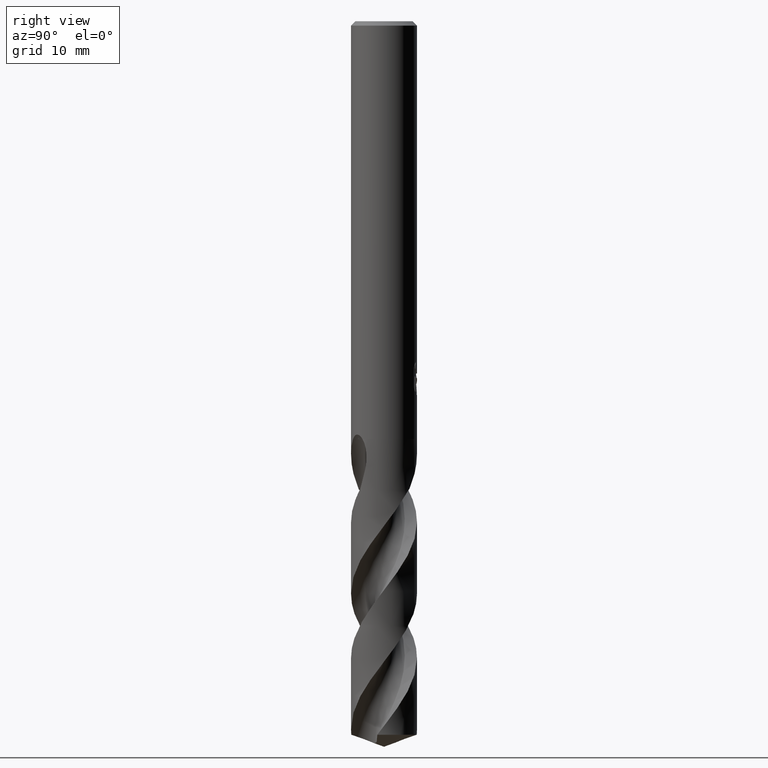
[diagram: clean part render]
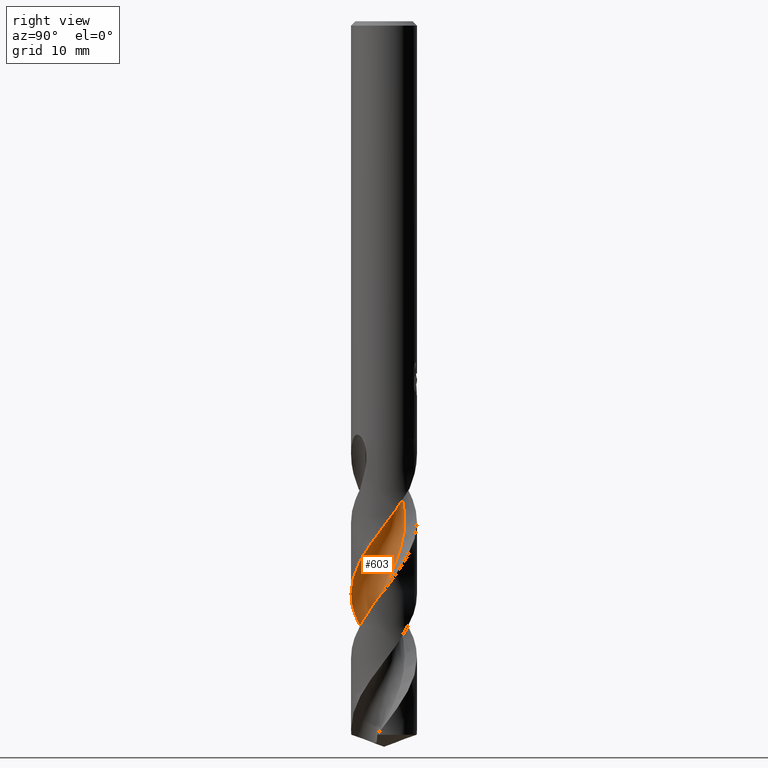
[diagram: same view with one face highlighted and labeled with its STEP entity id]
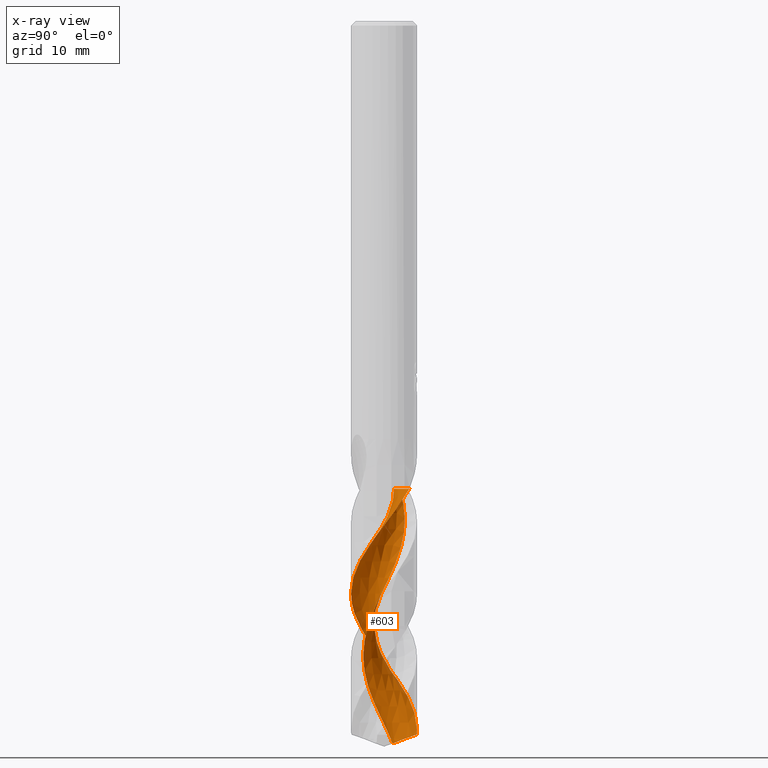
[diagram: x-ray of the same camera — body ghosted, the highlighted face saturated]
A machine part, right view. The second image highlights one B-rep face of the part: STEP entity #603.
The next image is the same camera in x-ray: the body ghosted, the highlighted face saturated — about 0% of this face is hidden behind the body in this view.
In plain terms, the highlighted face is a freeform B-spline surface patch.
Its self-contained STEP definition (entity closure, byte-faithful):
#263=VERTEX_POINT('',#723);
#271=EDGE_CURVE('',#425,#543,#731,.T.);
#345=VERTEX_POINT('',#813);
#375=EDGE_CURVE('',#399,#529,#844,.T.);
#399=VERTEX_POINT('',#871);
#425=VERTEX_POINT('',#899);
#447=VERTEX_POINT('',#922);
#457=EDGE_CURVE('',#543,#263,#933,.T.);
#529=VERTEX_POINT('',#1013);
#535=EDGE_CURVE('',#611,#399,#1019,.T.);
#543=VERTEX_POINT('',#1027);
#559=EDGE_CURVE('',#263,#345,#1044,.T.);
#561=EDGE_CURVE('',#345,#611,#1046,.T.);
#603=ADVANCED_FACE('',(#1092),#1093,.F.);
#611=VERTEX_POINT('',#1101);
#653=EDGE_CURVE('',#447,#425,#1147,.T.);
#681=EDGE_CURVE('',#529,#447,#1179,.T.);
#723=CARTESIAN_POINT('',(-1.77598206229437,0.64562437079827,-65.3122076610078));
#731=CIRCLE('',#1315,2.0);
#813=CARTESIAN_POINT('',(-5.63886225837645E-011,1.01414050633205,-65.6308830423315));
#844=B_SPLINE_CURVE_WITH_KNOTS('',3,(#2209,#2210,#2211,#2212,#2213,#2214,#2215,#2216,#2217,#2218,#2219,#2220,#2221,#2222,#2223,#2224,#2225,#2226,#2227,#2228,#2229,#2230,#2231,#2232,#2233,#2234,#2235,#2236,#2237,#2238,#2239,#2240,#2241,#2242,#2243,#2244,#2245,#2246,#2247,#2248,#2249,#2250,#2251,#2252,#2253,#2254,#2255,#2256,#2257,#2258,#2259,#2260,#2261,#2262,#2263,#2264,#2265,#2266,#2267,#2268,#2269,#2270,#2271,#2272,#2273,#2274,#2275,#2276,#2277,#2278,#2279,#2280,#2281,#2282,#2283,#2284,#2285,#2286),.UNSPECIFIED.,.F.,.F.,(4,2,2,2,2,2,2,2,2,2,2,2,2,2,2,2,2,2,2,2,2,2,2,2,2,2,2,2,2,2,2,2,2,2,2,2,2,2,4),(0.0,1.23059925118849,2.02254366443159,2.67546675293047,4.09672308397308,4.23628683515398,5.82683230148594,6.40497399606678,7.7780970524227,7.91502252090712,9.56634925585409,9.84450840921103,11.4877242502874,11.7588412039597,12.7161327518608,14.2986042545293,14.69491313978,15.0909294602242,15.3754807391882,16.3953776993288,17.9810262349513,18.7752393410076,19.0877081876738,20.7383235339199,21.0281845886458,21.9273418856885,22.3315568392924,22.8934305032543,23.9805915588334,25.9628607800466,26.9171063319389,27.1507275410228,27.3314841823381,27.332107871347,27.3564421567242,27.3779982106044,27.4053041831309,27.4618206861785,27.5436484122927),.UNSPECIFIED.);
#871=CARTESIAN_POINT('',(-2.94166652379847E-010,2.99999825594697,-64.4387979511909));
#899=CARTESIAN_POINT('',(-0.222706862290608,0.912425706777261,-42.541));
#922=CARTESIAN_POINT('',(1.911620345301,2.31197078660974,-42.541));
#933=B_SPLINE_CURVE_WITH_KNOTS('',3,(#2665,#2666,#2667,#2668,#2669,#2670,#2671,#2672,#2673,#2674,#2675,#2676,#2677,#2678,#2679,#2680,#2681,#2682,#2683,#2684,#2685,#2686,#2687,#2688,#2689,#2690,#2691,#2692,#2693,#2694,#2695,#2696,#2697,#2698,#2699,#2700,#2701,#2702,#2703,#2704,#2705,#2706,#2707,#2708,#2709,#2710,#2711,#2712,#2713,#2714,#2715,#2716,#2717),.UNSPECIFIED.,.F.,.F.,(4,1,2,2,2,2,1,2,1,2,1,2,1,2,1,2,1,2,1,2,1,2,1,2,1,2,1,2,1,2,1,2,1,4),(0.0,0.535937422266589,1.07187484453318,2.14374968906636,3.21562453359953,4.28749937813271,5.35937422266589,6.43124906719907,7.50312391173225,8.57499875626543,9.6468736007986,10.7187484453318,11.790623289865,12.8624981343981,13.9343729789313,15.0062478234645,16.0781226679977,17.1499975125309,18.221872357064,19.2937472015972,20.3656220461304,21.4374968906636,22.5093717351967,23.5812465797299,24.6531214242631,25.7249962687963,26.7968711133295,27.8687459578626,28.9406208023958,30.012495646929,31.0843704914622,32.1562453359954,33.2281201805285,34.2999950250617),.UNSPECIFIED.);
#1013=CARTESIAN_POINT('',(1.29858009831303E-013,-2.9999523347009,-52.0822680513244));
#1019=B_SPLINE_CURVE_WITH_KNOTS('',3,(#3281,#3282,#3283,#3284,#3285,#3286,#3287,#3288,#3289,#3290,#3291,#3292,#3293,#3294,#3295,#3296,#3297,#3298,#3299,#3300,#3301,#3302,#3303,#3304,#3305,#3306,#3307,#3308,#3309,#3310,#3311,#3312,#3313,#3314,#3315,#3316,#3317,#3318,#3319,#3320,#3321,#3322,#3323,#3324,#3325,#3326,#3327,#3328,#3329,#3330,#3331,#3332,#3333,#3334,#3335,#3336,#3337,#3338,#3339,#3340,#3341,#3342,#3343,#3344,#3345,#3346,#3347,#3348,#3349,#3350,#3351,#3352,#3353,#3354,#3355,#3356,#3357,#3358),.UNSPECIFIED.,.F.,.F.,(4,2,2,2,2,2,2,2,2,2,2,2,2,2,2,2,2,2,2,2,2,2,2,2,2,2,2,2,2,2,2,2,2,2,2,2,2,2,4),(0.0,1.23059925118849,2.02254366443159,2.67546675293047,4.09672308397308,4.23628683515398,5.82683230148594,6.40497399606678,7.7780970524227,7.91502252090712,9.56634925585409,9.84450840921103,11.4877242502874,11.7588412039597,12.7161327518608,14.2986042545293,14.69491313978,15.0909294602242,15.3754807391882,16.3953776993288,17.9810262349513,18.7752393410076,19.0877081876738,20.7383235339199,21.0281845886458,21.9273418856885,22.3315568392924,22.8934305032543,23.9805915588334,25.9628607800466,26.9171063319389,27.1507275410228,27.3314841823381,27.332107871347,27.3564421567242,27.3779982106044,27.4053041831309,27.4618206861785,27.5436484122927),.UNSPECIFIED.);
#1027=CARTESIAN_POINT('',(-1.41421356230238,1.48578643769762,-42.541));
#1044=B_SPLINE_CURVE_WITH_KNOTS('',3,(#3452,#3453,#3454,#3455,#3456,#3457,#3458,#3459,#3460,#3461,#3462,#3463,#3464,#3465,#3466,#3467,#3468,#3469,#3470,#3471),.UNSPECIFIED.,.F.,.F.,(4,2,2,2,2,2,2,2,2,4),(0.0,1.21935851085247,2.0820986124447,2.92060499968926,3.90824303530871,5.0528193195316,6.38310165392401,7.92078837502476,9.14413415805913,10.3724052503571),.UNSPECIFIED.);
#1046=B_SPLINE_CURVE_WITH_KNOTS('',3,(#3474,#3475,#3476,#3477,#3478,#3479,#3480,#3481,#3482,#3483,#3484,#3485,#3486,#3487,#3488,#3489,#3490,#3491,#3492,#3493),.UNSPECIFIED.,.F.,.F.,(4,2,2,2,2,2,2,2,2,4),(0.0,1.21935851085247,2.0820986124447,2.92060499968926,3.90824303530871,5.0528193195316,6.38310165392401,7.92078837502476,9.14413415805913,10.3724052503571),.UNSPECIFIED.);
#1092=FACE_OUTER_BOUND('',#3931,.T.);
#1093=B_SPLINE_SURFACE_WITH_KNOTS('',3,3,((#3932,#3933,#3934,#3935,#3936,#3937,#3938,#3939,#3940,#3941,#3942,#3943,#3944,#3945,#3946,#3947,#3948,#3949,#3950,#3951,#3952,#3953,#3954,#3955,#3956,#3957,#3958,#3959,#3960,#3961,#3962,#3963,#3964,#3965,#3966,#3967,#3968,#3969,#3970,#3971,#3972,#3973,#3974,#3975,#3976,#3977,#3978,#3979,#3980,#3981,#3982,#3983,#3984),(#3985,#3986,#3987,#3988,#3989,#3990,#3991,#3992,#3993,#3994,#3995,#3996,#3997,#3998,#3999,#4000,#4001,#4002,#4003,#4004,#4005,#4006,#4007,#4008,#4009,#4010,#4011,#4012,#4013,#4014,#4015,#4016,#4017,#4018,#4019,#4020,#4021,#4022,#4023,#4024,#4025,#4026,#4027,#4028,#4029,#4030,#4031,#4032,#4033,#4034,#4035,#4036,#4037),(#4038,#4039,#4040,#4041,#4042,#4043,#4044,#4045,#4046,#4047,#4048,#4049,#4050,#4051,#4052,#4053,#4054,#4055,#4056,#4057,#4058,#4059,#4060,#4061,#4062,#4063,#4064,#4065,#4066,#4067,#4068,#4069,#4070,#4071,#4072,#4073,#4074,#4075,#4076,#4077,#4078,#4079,#4080,#4081,#4082,#4083,#4084,#4085,#4086,#4087,#4088,#4089,#4090),(#4091,#4092,#4093,#4094,#4095,#4096,#4097,#4098,#4099,#4100,#4101,#4102,#4103,#4104,#4105,#4106,#4107,#4108,#4109,#4110,#4111,#4112,#4113,#4114,#4115,#4116,#4117,#4118,#4119,#4120,#4121,#4122,#4123,#4124,#4125,#4126,#4127,#4128,#4129,#4130,#4131,#4132,#4133,#4134,#4135,#4136,#4137,#4138,#4139,#4140,#4141,#4142,#4143),(#4144,#4145,#4146,#4147,#4148,#4149,#4150,#4151,#4152,#4153,#4154,#4155,#4156,#4157,#4158,#4159,#4160,#4161,#4162,#4163,#4164,#4165,#4166,#4167,#4168,#4169,#4170,#4171,#4172,#4173,#4174,#4175,#4176,#4177,#4178,#4179,#4180,#4181,#4182,#4183,#4184,#4185,#4186,#4187,#4188,#4189,#4190,#4191,#4192,#4193,#4194,#4195,#4196),(#4197,#4198,#4199,#4200,#4201,#4202,#4203,#4204,#4205,#4206,#4207,#4208,#4209,#4210,#4211,#4212,#4213,#4214,#4215,#4216,#4217,#4218,#4219,#4220,#4221,#4222,#4223,#4224,#4225,#4226,#4227,#4228,#4229,#4230,#4231,#4232,#4233,#4234,#4235,#4236,#4237,#4238,#4239,#4240,#4241,#4242,#4243,#4244,#4245,#4246,#4247,#4248,#4249),(#4250,#4251,#4252,#4253,#4254,#4255,#4256,#4257,#4258,#4259,#4260,#4261,#4262,#4263,#4264,#4265,#4266,#4267,#4268,#4269,#4270,#4271,#4272,#4273,#4274,#4275,#4276,#4277,#4278,#4279,#4280,#4281,#4282,#4283,#4284,#4285,#4286,#4287,#4288,#4289,#4290,#4291,#4292,#4293,#4294,#4295,#4296,#4297,#4298,#4299,#4300,#4301,#4302),(#4303,#4304,#4305,#4306,#4307,#4308,#4309,#4310,#4311,#4312,#4313,#4314,#4315,#4316,#4317,#4318,#4319,#4320,#4321,#4322,#4323,#4324,#4325,#4326,#4327,#4328,#4329,#4330,#4331,#4332,#4333,#4334,#4335,#4336,#4337,#4338,#4339,#4340,#4341,#4342,#4343,#4344,#4345,#4346,#4347,#4348,#4349,#4350,#4351,#4352,#4353,#4354,#4355),(#4356,#4357,#4358,#4359,#4360,#4361,#4362,#4363,#4364,#4365,#4366,#4367,#4368,#4369,#4370,#4371,#4372,#4373,#4374,#4375,#4376,#4377,#4378,#4379,#4380,#4381,#4382,#4383,#4384,#4385,#4386,#4387,#4388,#4389,#4390,#4391,#4392,#4393,#4394,#4395,#4396,#4397,#4398,#4399,#4400,#4401,#4402,#4403,#4404,#4405,#4406,#4407,#4408),(#4409,#4410,#4411,#4412,#4413,#4414,#4415,#4416,#4417,#4418,#4419,#4420,#4421,#4422,#4423,#4424,#4425,#4426,#4427,#4428,#4429,#4430,#4431,#4432,#4433,#4434,#4435,#4436,#4437,#4438,#4439,#4440,#4441,#4442,#4443,#4444,#4445,#4446,#4447,#4448,#4449,#4450,#4451,#4452,#4453,#4454,#4455,#4456,#4457,#4458,#4459,#4460,#4461),(#4462,#4463,#4464,#4465,#4466,#4467,#4468,#4469,#4470,#4471,#4472,#4473,#4474,#4475,#4476,#4477,#4478,#4479,#4480,#4481,#4482,#4483,#4484,#4485,#4486,#4487,#4488,#4489,#4490,#4491,#4492,#4493,#4494,#4495,#4496,#4497,#4498,#4499,#4500,#4501,#4502,#4503,#4504,#4505,#4506,#4507,#4508,#4509,#4510,#4511,#4512,#4513,#4514)),.UNSPECIFIED.,.F.,.F.,.F.,(4,1,1,1,1,1,1,1,4),(4,1,2,2,2,2,1,2,1,2,1,2,1,2,1,2,1,2,1,2,1,2,1,2,1,2,1,2,1,2,1,2,1,4),(3.50857987411676E-017,0.392701581698827,0.785403163397655,1.17810474509648,1.57080632679531,1.96350790849414,2.35620949019296,2.74891107189179,3.14161265359062),(0.0,0.535937422266589,1.07187484453318,2.14374968906636,3.21562453359953,4.28749937813271,5.35937422266589,6.43124906719907,7.50312391173225,8.57499875626543,9.6468736007986,10.7187484453318,11.790623289865,12.8624981343981,13.9343729789313,15.0062478234645,16.0781226679977,17.1499975125309,18.221872357064,19.2937472015972,20.3656220461304,21.4374968906636,22.5093717351967,23.5812465797299,24.6531214242631,25.7249962687963,26.7968711133295,27.8687459578626,28.9406208023958,30.012495646929,31.0843704914622,32.1562453359954,33.2281201805285,34.2999950250617),.UNSPECIFIED.);
#1101=CARTESIAN_POINT('',(0.355715429172597,2.9788364395261,-64.9080892972014));
#1147=CIRCLE('',#4778,2.0);
#1179=B_SPLINE_CURVE_WITH_KNOTS('',3,(#4855,#4856,#4857,#4858,#4859,#4860,#4861,#4862,#4863,#4864,#4865,#4866,#4867,#4868,#4869,#4870,#4871,#4872,#4873,#4874,#4875,#4876,#4877,#4878,#4879,#4880,#4881,#4882,#4883,#4884,#4885,#4886,#4887,#4888,#4889,#4890,#4891,#4892,#4893,#4894,#4895,#4896,#4897,#4898,#4899,#4900,#4901,#4902,#4903,#4904,#4905,#4906,#4907,#4908,#4909,#4910,#4911,#4912,#4913,#4914,#4915,#4916,#4917,#4918,#4919,#4920,#4921,#4922,#4923,#4924,#4925,#4926,#4927,#4928,#4929,#4930,#4931,#4932),.UNSPECIFIED.,.F.,.F.,(4,2,2,2,2,2,2,2,2,2,2,2,2,2,2,2,2,2,2,2,2,2,2,2,2,2,2,2,2,2,2,2,2,2,2,2,2,2,4),(0.0,1.23059925118849,2.02254366443159,2.67546675293047,4.09672308397308,4.23628683515398,5.82683230148594,6.40497399606678,7.7780970524227,7.91502252090712,9.56634925585409,9.84450840921103,11.4877242502874,11.7588412039597,12.7161327518608,14.2986042545293,14.69491313978,15.0909294602242,15.3754807391882,16.3953776993288,17.9810262349513,18.7752393410076,19.0877081876738,20.7383235339199,21.0281845886458,21.9273418856885,22.3315568392924,22.8934305032543,23.9805915588334,25.9628607800466,26.9171063319389,27.1507275410228,27.3314841823381,27.332107871347,27.3564421567242,27.3779982106044,27.4053041831309,27.4618206861785,27.5436484122927),.UNSPECIFIED.);
#1315=AXIS2_PLACEMENT_3D('',#4968,#4969,#4970);
#2209=CARTESIAN_POINT('',(0.355715429172608,2.97883643952611,-64.9080892972014));
#2210=CARTESIAN_POINT('',(0.108423872193947,3.00836534792681,-64.5821464116512));
#2211=CARTESIAN_POINT('',(-0.14126292742069,3.00699487664025,-64.2534313312999));
#2212=CARTESIAN_POINT('',(-0.547022784109965,2.95405006143379,-63.7175674678408));
#2213=CARTESIAN_POINT('',(-0.703916104603996,2.92063233410042,-63.5087790854431));
#2214=CARTESIAN_POINT('',(-0.983777162831405,2.8371744636381,-63.1258038129837));
#2215=CARTESIAN_POINT('',(-1.10750346682162,2.79120229814625,-62.9520627314224));
#2216=CARTESIAN_POINT('',(-1.49003201116616,2.61959523917925,-62.4022537567128));
#2217=CARTESIAN_POINT('',(-1.73356156526769,2.46510658651888,-62.0309006535153));
#2218=CARTESIAN_POINT('',(-1.97251142065753,2.26051244051107,-61.6166980609076));
#2219=CARTESIAN_POINT('',(-1.99359188261644,2.24194319602669,-61.5796521623226));
#2220=CARTESIAN_POINT('',(-2.25212692993936,2.00766523526649,-61.1202779276782));
#2221=CARTESIAN_POINT('',(-2.45372823013072,1.7555969038838,-60.7060501227171));
#2222=CARTESIAN_POINT('',(-2.66904958562007,1.37465483831421,-60.131142160839));
#2223=CARTESIAN_POINT('',(-2.72054892765585,1.26971487818829,-59.9771589417432));
#2224=CARTESIAN_POINT('',(-2.8733943045389,0.905874186704099,-59.4595376310633));
#2225=CARTESIAN_POINT('',(-2.94475741547369,0.636407230716807,-59.1002867606203));
#2226=CARTESIAN_POINT('',(-2.98145611461726,0.33398214789438,-58.6993505678631));
#2227=CARTESIAN_POINT('',(-2.98439978299617,0.306560521861027,-58.6629886142862));
#2228=CARTESIAN_POINT('',(-3.01790883658861,-0.0520769974475426,-58.188650092877));
#2229=CARTESIAN_POINT('',(-2.9935807850138,-0.386006275418927,-57.7595478519967));
#2230=CARTESIAN_POINT('',(-2.90167181877003,-0.7637214625324,-57.2485079163081));
#2231=CARTESIAN_POINT('',(-2.88692285382064,-0.81770241854698,-57.1747113627708));
#2232=CARTESIAN_POINT('',(-2.77462888700925,-1.1876848669478,-56.666026182787));
#2233=CARTESIAN_POINT('',(-2.62703780792911,-1.48580498713024,-56.239728305507));
#2234=CARTESIAN_POINT('',(-2.40203744711239,-1.79804963439508,-55.7332363672762));
#2235=CARTESIAN_POINT('',(-2.36898216096019,-1.84138636647667,-55.6613840187392));
#2236=CARTESIAN_POINT('',(-2.2134899211291,-2.03408005192827,-55.3358589079439));
#2237=CARTESIAN_POINT('',(-2.07794100424594,-2.17242022805645,-55.0840334642739));
#2238=CARTESIAN_POINT('',(-1.68474385633832,-2.50275639506825,-54.4124773306945));
#2239=CARTESIAN_POINT('',(-1.40847840779455,-2.66802012056147,-53.9930328364081));
#2240=CARTESIAN_POINT('',(-1.03682817966024,-2.81623042134794,-53.4698608760575));
#2241=CARTESIAN_POINT('',(-0.961251210578935,-2.84291301538508,-53.365195142781));
#2242=CARTESIAN_POINT('',(-0.808236207114983,-2.89013812736791,-53.1556590390761));
#2243=CARTESIAN_POINT('',(-0.730944485985276,-2.91064047460743,-53.0509858237727));
#2244=CARTESIAN_POINT('',(-0.597050152329564,-2.94050210353061,-52.8707253956608));
#2245=CARTESIAN_POINT('',(-0.540816258263153,-2.95135917311015,-52.7952164478755));
#2246=CARTESIAN_POINT('',(-0.281981202353597,-2.99370334687491,-52.450057107698));
#2247=CARTESIAN_POINT('',(-0.0764041741893483,-3.00603514307549,-52.1823957078234));
#2248=CARTESIAN_POINT('',(0.448960805724959,-2.98337827034909,-51.4947785251873));
#2249=CARTESIAN_POINT('',(0.764335279179242,-2.91854282624644,-51.0752713204472));
#2250=CARTESIAN_POINT('',(1.21343840984988,-2.74826069131348,-50.4472171681916));
#2251=CARTESIAN_POINT('',(1.35830337547638,-2.67959448180724,-50.2385056676068));
#2252=CARTESIAN_POINT('',(1.55129812661377,-2.56848088818788,-49.94596610728));
#2253=CARTESIAN_POINT('',(1.60469804454467,-2.53545673745866,-49.8631918568593));
#2254=CARTESIAN_POINT('',(1.93310734454785,-2.31785994077389,-49.344783991864));
#2255=CARTESIAN_POINT('',(2.17686365028644,-2.09057094449036,-48.9176803776869));
#2256=CARTESIAN_POINT('',(2.41400755376753,-1.78201536618773,-48.4056760544633));
#2257=CARTESIAN_POINT('',(2.44807042219407,-1.73492794313762,-48.3290593553937));
#2258=CARTESIAN_POINT('',(2.58242582262247,-1.5373203357321,-48.0149387172119));
#2259=CARTESIAN_POINT('',(2.67046734698487,-1.37879733278526,-47.7789345950098));
#2260=CARTESIAN_POINT('',(2.77671298833341,-1.13847097429135,-47.4353383336979));
#2261=CARTESIAN_POINT('',(2.80658466002186,-1.06268946773971,-47.3288677116154));
#2262=CARTESIAN_POINT('',(2.87048071801647,-0.879051052044188,-47.0739364077395));
#2263=CARTESIAN_POINT('',(2.9015116585558,-0.770414524594633,-46.9250754881505));
#2264=CARTESIAN_POINT('',(2.97435156474368,-0.447664382337742,-46.4901160911542));
#2265=CARTESIAN_POINT('',(2.99909143826466,-0.23000332275836,-46.2060163083951));
#2266=CARTESIAN_POINT('',(3.0013981760678,0.387705065149538,-45.3982306889312));
#2267=CARTESIAN_POINT('',(2.92336149064987,0.783187841239573,-44.8740622106938));
#2268=CARTESIAN_POINT('',(2.69583282506547,1.33006382876436,-44.1038262157045));
#2269=CARTESIAN_POINT('',(2.60718050882251,1.49558842303184,-43.8682873785209));
#2270=CARTESIAN_POINT('',(2.4796655483617,1.68904087442066,-43.5517912319621));
#2271=CARTESIAN_POINT('',(2.45406487003669,1.7259933584331,-43.4892372093897));
#2272=CARTESIAN_POINT('',(2.40788643900192,1.78963101243892,-43.377240969005));
#2273=CARTESIAN_POINT('',(2.38753213382402,1.81667996127583,-43.3281534388184));
#2274=CARTESIAN_POINT('',(2.36692845706543,1.84314063488602,-43.2785183839988));
#2275=CARTESIAN_POINT('',(2.36627009621356,1.84398584589191,-43.2769333219162));
#2276=CARTESIAN_POINT('',(2.35288675920936,1.86115321773287,-43.2447693668841));
#2277=CARTESIAN_POINT('',(2.3393808104854,1.8781123243806,-43.2137771389712));
#2278=CARTESIAN_POINT('',(2.31294737430535,1.91054328842237,-43.1559163518822));
#2279=CARTESIAN_POINT('',(2.30015264545649,1.92593569582255,-43.1290310868797));
#2280=CARTESIAN_POINT('',(2.27022723088149,1.96118562979294,-43.0686868352912));
#2281=CARTESIAN_POINT('',(2.25288279129273,1.98110082667267,-43.0354528065236));
#2282=CARTESIAN_POINT('',(2.1975893208719,2.04284959041853,-42.9347726385718));
#2283=CARTESIAN_POINT('',(2.15764844681876,2.08511781051689,-42.8691279792306));
#2284=CARTESIAN_POINT('',(2.05269160805423,2.18943444393418,-42.712894306644));
#2285=CARTESIAN_POINT('',(1.98511261037829,2.25120515308698,-42.6252793260781));
#2286=CARTESIAN_POINT('',(1.911620345301,2.31197078660974,-42.541));
#2665=CARTESIAN_POINT('',(-1.41421356230238,1.48578643769761,-42.541));
#2666=CARTESIAN_POINT('',(-1.28199731396148,1.47737216005492,-42.662978391469));
#2667=CARTESIAN_POINT('',(-1.07075226588977,1.48770390327164,-42.9060065709639));
#2668=CARTESIAN_POINT('',(-0.965731218224757,1.54681459393766,-43.1487363909063));
#2669=CARTESIAN_POINT('',(-0.876915344754997,1.68055823763202,-43.5171468030778));
#2670=CARTESIAN_POINT('',(-0.780909029864967,1.74419581662377,-43.7634991078887));
#2671=CARTESIAN_POINT('',(-0.548818001469707,1.81357033808247,-44.2511917476615));
#2672=CARTESIAN_POINT('',(-0.432307938995928,1.84028450622683,-44.4951556677595));
#2673=CARTESIAN_POINT('',(-0.201942296029583,1.88151086507644,-44.9841603747216));
#2674=CARTESIAN_POINT('',(-0.0842682505131492,1.89023376353881,-45.2285965119523));
#2675=CARTESIAN_POINT('',(0.14904795547217,1.88956524804595,-45.7174809742917));
#2676=CARTESIAN_POINT('',(0.384586432342352,1.8607345657108,-46.2065247814002));
#2677=CARTESIAN_POINT('',(0.610143420736848,1.78957448915152,-46.695168436435));
#2678=CARTESIAN_POINT('',(0.827183852822798,1.70495275443263,-47.184020011781));
#2679=CARTESIAN_POINT('',(1.03610735000003,1.59300665995646,-47.6730682749901));
#2680=CARTESIAN_POINT('',(1.22026644162051,1.44460112809955,-48.1617306994057));
#2681=CARTESIAN_POINT('',(1.39147624213706,1.28649778599562,-48.6505782300161));
#2682=CARTESIAN_POINT('',(1.54518587992288,1.10599561196707,-49.1396177579295));
#2683=CARTESIAN_POINT('',(1.66262630631632,0.90071240180047,-49.6282773802717));
#2684=CARTESIAN_POINT('',(1.76451671059424,0.691152725216506,-50.1171318262001));
#2685=CARTESIAN_POINT('',(1.84193450239447,0.467082040297483,-50.6061776446777));
#2686=CARTESIAN_POINT('',(1.87651532235208,0.233116798939939,-51.0948385034607));
#2687=CARTESIAN_POINT('',(1.8950478917598,0.000831715648423423,-51.5836903268069));
#2688=CARTESIAN_POINT('',(1.8855094479651,-0.236046692512977,-52.0727341106372));
#2689=CARTESIAN_POINT('',(1.8324816971829,-0.466530918651079,-52.5613948959374));
#2690=CARTESIAN_POINT('',(1.76512107619646,-0.689604590388728,-53.050247821731));
#2691=CARTESIAN_POINT('',(1.66994323999476,-0.906730158343582,-53.5392923574005));
#2692=CARTESIAN_POINT('',(1.53659295229214,-1.10205762535529,-54.0279531678175));
#2693=CARTESIAN_POINT('',(1.39259514278314,-1.28526235677929,-54.5168058197477));
#2694=CARTESIAN_POINT('',(1.22485848169003,-1.45279372933858,-55.0058502633323));
#2695=CARTESIAN_POINT('',(1.02951309281082,-1.58611820741822,-55.4945111443043));
#2696=CARTESIAN_POINT('',(0.828667935575958,-1.70427378713975,-55.983363843188));
#2697=CARTESIAN_POINT('',(0.611426354744693,-1.79918569697561,-56.4724079087112));
#2698=CARTESIAN_POINT('',(0.380937150081438,-1.85218600441173,-56.9610683272469));
#2699=CARTESIAN_POINT('',(0.150852575923216,-1.88905757962836,-57.4499209282887));
#2700=CARTESIAN_POINT('',(-0.0860383630616903,-1.89830287040804,-57.9389658539145));
#2701=CARTESIAN_POINT('',(-0.320000353059871,-1.86367950920433,-58.4276258926627));
#2702=CARTESIAN_POINT('',(-0.547707982374331,-1.81418178948244,-58.9164760330983));
#2703=CARTESIAN_POINT('',(-0.771683974866993,-1.73650130149701,-59.4055172835959));
#2704=CARTESIAN_POINT('',(-0.976956914570154,-1.6190537718623,-59.8941810213836));
#2705=CARTESIAN_POINT('',(-1.17099033779562,-1.49002195234394,-60.3830426654995));
#2706=CARTESIAN_POINT('',(-1.35127043232873,-1.33603479673434,-60.8720946432538));
#2707=CARTESIAN_POINT('',(-1.49962295877917,-1.15183252986896,-61.3607375763271));
#2708=CARTESIAN_POINT('',(-1.63331317924485,-0.961006570148637,-61.8495512024516));
#2709=CARTESIAN_POINT('',(-1.74518324237245,-0.752078222742175,-62.3385707678905));
#2710=CARTESIAN_POINT('',(-1.81620190599591,-0.526416631105165,-62.8273009282922));
#2711=CARTESIAN_POINT('',(-1.87087154098066,-0.299680057904184,-63.3162913752621));
#2712=CARTESIAN_POINT('',(-1.89859439732252,-0.0640366362775479,-63.8054171925894));
#2713=CARTESIAN_POINT('',(-1.88361483388979,0.171437892527547,-64.2939270281176));
#2714=CARTESIAN_POINT('',(-1.854458839104,0.401585627661162,-64.7824883837085));
#2715=CARTESIAN_POINT('',(-1.79479075738715,0.630928255271202,-65.2714114303073));
#2716=CARTESIAN_POINT('',(-1.68818622910424,0.844940268539197,-65.7598416376749));
#2717=CARTESIAN_POINT('',(-1.62740776696343,0.946370705904108,-66.0039941601015));
#3281=CARTESIAN_POINT('',(0.355715429172608,2.97883643952611,-64.9080892972014));
#3282=CARTESIAN_POINT('',(0.108423872193947,3.00836534792681,-64.5821464116512));
#3283=CARTESIAN_POINT('',(-0.14126292742069,3.00699487664025,-64.2534313312999));
#3284=CARTESIAN_POINT('',(-0.547022784109965,2.95405006143379,-63.7175674678408));
#3285=CARTESIAN_POINT('',(-0.703916104603996,2.92063233410042,-63.5087790854431));
#3286=CARTESIAN_POINT('',(-0.983777162831405,2.8371744636381,-63.1258038129837));
#3287=CARTESIAN_POINT('',(-1.10750346682162,2.79120229814625,-62.9520627314224));
#3288=CARTESIAN_POINT('',(-1.49003201116616,2.61959523917925,-62.4022537567128));
#3289=CARTESIAN_POINT('',(-1.73356156526769,2.46510658651888,-62.0309006535153));
#3290=CARTESIAN_POINT('',(-1.97251142065753,2.26051244051107,-61.6166980609076));
#3291=CARTESIAN_POINT('',(-1.99359188261644,2.24194319602669,-61.5796521623226));
#3292=CARTESIAN_POINT('',(-2.25212692993936,2.00766523526649,-61.1202779276782));
#3293=CARTESIAN_POINT('',(-2.45372823013072,1.7555969038838,-60.7060501227171));
#3294=CARTESIAN_POINT('',(-2.66904958562007,1.37465483831421,-60.131142160839));
#3295=CARTESIAN_POINT('',(-2.72054892765585,1.26971487818829,-59.9771589417432));
#3296=CARTESIAN_POINT('',(-2.8733943045389,0.905874186704099,-59.4595376310633));
#3297=CARTESIAN_POINT('',(-2.94475741547369,0.636407230716807,-59.1002867606203));
#3298=CARTESIAN_POINT('',(-2.98145611461726,0.33398214789438,-58.6993505678631));
#3299=CARTESIAN_POINT('',(-2.98439978299617,0.306560521861027,-58.6629886142862));
#3300=CARTESIAN_POINT('',(-3.01790883658861,-0.0520769974475426,-58.188650092877));
#3301=CARTESIAN_POINT('',(-2.9935807850138,-0.386006275418927,-57.7595478519967));
#3302=CARTESIAN_POINT('',(-2.90167181877003,-0.7637214625324,-57.2485079163081));
#3303=CARTESIAN_POINT('',(-2.88692285382064,-0.81770241854698,-57.1747113627708));
#3304=CARTESIAN_POINT('',(-2.77462888700925,-1.1876848669478,-56.666026182787));
#3305=CARTESIAN_POINT('',(-2.62703780792911,-1.48580498713024,-56.239728305507));
#3306=CARTESIAN_POINT('',(-2.40203744711239,-1.79804963439508,-55.7332363672762));
#3307=CARTESIAN_POINT('',(-2.36898216096019,-1.84138636647667,-55.6613840187392));
#3308=CARTESIAN_POINT('',(-2.2134899211291,-2.03408005192827,-55.3358589079439));
#3309=CARTESIAN_POINT('',(-2.07794100424594,-2.17242022805645,-55.0840334642739));
#3310=CARTESIAN_POINT('',(-1.68474385633832,-2.50275639506825,-54.4124773306945));
#3311=CARTESIAN_POINT('',(-1.40847840779455,-2.66802012056147,-53.9930328364081));
#3312=CARTESIAN_POINT('',(-1.03682817966024,-2.81623042134794,-53.4698608760575));
#3313=CARTESIAN_POINT('',(-0.961251210578935,-2.84291301538508,-53.365195142781));
#3314=CARTESIAN_POINT('',(-0.808236207114983,-2.89013812736791,-53.1556590390761));
#3315=CARTESIAN_POINT('',(-0.730944485985276,-2.91064047460743,-53.0509858237727));
#3316=CARTESIAN_POINT('',(-0.597050152329564,-2.94050210353061,-52.8707253956608));
#3317=CARTESIAN_POINT('',(-0.540816258263153,-2.95135917311015,-52.7952164478755));
#3318=CARTESIAN_POINT('',(-0.281981202353597,-2.99370334687491,-52.450057107698));
#3319=CARTESIAN_POINT('',(-0.0764041741893483,-3.00603514307549,-52.1823957078234));
#3320=CARTESIAN_POINT('',(0.448960805724959,-2.98337827034909,-51.4947785251873));
#3321=CARTESIAN_POINT('',(0.764335279179242,-2.91854282624644,-51.0752713204472));
#3322=CARTESIAN_POINT('',(1.21343840984988,-2.74826069131348,-50.4472171681916));
#3323=CARTESIAN_POINT('',(1.35830337547638,-2.67959448180724,-50.2385056676068));
#3324=CARTESIAN_POINT('',(1.55129812661377,-2.56848088818788,-49.94596610728));
#3325=CARTESIAN_POINT('',(1.60469804454467,-2.53545673745866,-49.8631918568593));
#3326=CARTESIAN_POINT('',(1.93310734454785,-2.31785994077389,-49.344783991864));
#3327=CARTESIAN_POINT('',(2.17686365028644,-2.09057094449036,-48.9176803776869));
#3328=CARTESIAN_POINT('',(2.41400755376753,-1.78201536618773,-48.4056760544633));
#3329=CARTESIAN_POINT('',(2.44807042219407,-1.73492794313762,-48.3290593553937));
#3330=CARTESIAN_POINT('',(2.58242582262247,-1.5373203357321,-48.0149387172119));
#3331=CARTESIAN_POINT('',(2.67046734698487,-1.37879733278526,-47.7789345950098));
#3332=CARTESIAN_POINT('',(2.77671298833341,-1.13847097429135,-47.4353383336979));
#3333=CARTESIAN_POINT('',(2.80658466002186,-1.06268946773971,-47.3288677116154));
#3334=CARTESIAN_POINT('',(2.87048071801647,-0.879051052044188,-47.0739364077395));
#3335=CARTESIAN_POINT('',(2.9015116585558,-0.770414524594633,-46.9250754881505));
#3336=CARTESIAN_POINT('',(2.97435156474368,-0.447664382337742,-46.4901160911542));
#3337=CARTESIAN_POINT('',(2.99909143826466,-0.23000332275836,-46.2060163083951));
#3338=CARTESIAN_POINT('',(3.0013981760678,0.387705065149538,-45.3982306889312));
#3339=CARTESIAN_POINT('',(2.92336149064987,0.783187841239573,-44.8740622106938));
#3340=CARTESIAN_POINT('',(2.69583282506547,1.33006382876436,-44.1038262157045));
#3341=CARTESIAN_POINT('',(2.60718050882251,1.49558842303184,-43.8682873785209));
#3342=CARTESIAN_POINT('',(2.4796655483617,1.68904087442066,-43.5517912319621));
#3343=CARTESIAN_POINT('',(2.45406487003669,1.7259933584331,-43.4892372093897));
#3344=CARTESIAN_POINT('',(2.40788643900192,1.78963101243892,-43.377240969005));
#3345=CARTESIAN_POINT('',(2.38753213382402,1.81667996127583,-43.3281534388184));
#3346=CARTESIAN_POINT('',(2.36692845706543,1.84314063488602,-43.2785183839988));
#3347=CARTESIAN_POINT('',(2.36627009621356,1.84398584589191,-43.2769333219162));
#3348=CARTESIAN_POINT('',(2.35288675920936,1.86115321773287,-43.2447693668841));
#3349=CARTESIAN_POINT('',(2.3393808104854,1.8781123243806,-43.2137771389712));
#3350=CARTESIAN_POINT('',(2.31294737430535,1.91054328842237,-43.1559163518822));
#3351=CARTESIAN_POINT('',(2.30015264545649,1.92593569582255,-43.1290310868797));
#3352=CARTESIAN_POINT('',(2.27022723088149,1.96118562979294,-43.0686868352912));
#3353=CARTESIAN_POINT('',(2.25288279129273,1.98110082667267,-43.0354528065236));
#3354=CARTESIAN_POINT('',(2.1975893208719,2.04284959041853,-42.9347726385718));
#3355=CARTESIAN_POINT('',(2.15764844681876,2.08511781051689,-42.8691279792306));
#3356=CARTESIAN_POINT('',(2.05269160805423,2.18943444393418,-42.712894306644));
#3357=CARTESIAN_POINT('',(1.98511261037829,2.25120515308698,-42.6252793260781));
#3358=CARTESIAN_POINT('',(1.911620345301,2.31197078660974,-42.541));
#3452=CARTESIAN_POINT('',(-1.77598206229436,0.645624370798283,-65.3122076610078));
#3453=CARTESIAN_POINT('',(-1.39317424499016,0.619836791042306,-65.4463608734423));
#3454=CARTESIAN_POINT('',(-1.02481667671254,0.656700517726753,-65.5668330857646));
#3455=CARTESIAN_POINT('',(-0.51766258412963,0.767516367492188,-65.6695173516346));
#3456=CARTESIAN_POINT('',(-0.345188508034041,0.825393196482474,-65.6799195250386));
#3457=CARTESIAN_POINT('',(-0.0452399299614103,0.973732005335028,-65.6500129041006));
#3458=CARTESIAN_POINT('',(0.0776967962675543,1.06240243863066,-65.613509935136));
#3459=CARTESIAN_POINT('',(0.29794608068971,1.2821094105446,-65.5222912910406));
#3460=CARTESIAN_POINT('',(0.390511889728346,1.42119540048883,-65.4636048079343));
#3461=CARTESIAN_POINT('',(0.530990645160717,1.75019159649164,-65.33436443091));
#3462=CARTESIAN_POINT('',(0.567966035398299,1.94070723295471,-65.2642208230035));
#3463=CARTESIAN_POINT('',(0.571638270748432,2.35818229202166,-65.1170693608278));
#3464=CARTESIAN_POINT('',(0.526072192565013,2.58225702042813,-65.0417685723859));
#3465=CARTESIAN_POINT('',(0.343625075484247,3.03806888727438,-64.8882643145643));
#3466=CARTESIAN_POINT('',(0.195141680726451,3.26219218844245,-64.8124628391271));
#3467=CARTESIAN_POINT('',(-0.137687714926232,3.60851871754926,-64.6867537255302));
#3468=CARTESIAN_POINT('',(-0.307443410950029,3.74114185424525,-64.6351501710698));
#3469=CARTESIAN_POINT('',(-0.679109911014719,3.95870006811041,-64.5394266461248));
#3470=CARTESIAN_POINT('',(-0.880146982704213,4.0428989648555,-64.4955969246386));
#3471=CARTESIAN_POINT('',(-1.09009642272713,4.10020606667,-64.4558050752019));
#3474=CARTESIAN_POINT('',(-1.77598206229436,0.645624370798283,-65.3122076610078));
#3475=CARTESIAN_POINT('',(-1.39317424499016,0.619836791042306,-65.4463608734423));
#3476=CARTESIAN_POINT('',(-1.02481667671254,0.656700517726753,-65.5668330857646));
#3477=CARTESIAN_POINT('',(-0.51766258412963,0.767516367492188,-65.6695173516346));
#3478=CARTESIAN_POINT('',(-0.345188508034041,0.825393196482474,-65.6799195250386));
#3479=CARTESIAN_POINT('',(-0.0452399299614103,0.973732005335028,-65.6500129041006));
#3480=CARTESIAN_POINT('',(0.0776967962675543,1.06240243863066,-65.613509935136));
#3481=CARTESIAN_POINT('',(0.29794608068971,1.2821094105446,-65.5222912910406));
#3482=CARTESIAN_POINT('',(0.390511889728346,1.42119540048883,-65.4636048079343));
#3483=CARTESIAN_POINT('',(0.530990645160717,1.75019159649164,-65.33436443091));
#3484=CARTESIAN_POINT('',(0.567966035398299,1.94070723295471,-65.2642208230035));
#3485=CARTESIAN_POINT('',(0.571638270748432,2.35818229202166,-65.1170693608278));
#3486=CARTESIAN_POINT('',(0.526072192565013,2.58225702042813,-65.0417685723859));
#3487=CARTESIAN_POINT('',(0.343625075484247,3.03806888727438,-64.8882643145643));
#3488=CARTESIAN_POINT('',(0.195141680726451,3.26219218844245,-64.8124628391271));
#3489=CARTESIAN_POINT('',(-0.137687714926232,3.60851871754926,-64.6867537255302));
#3490=CARTESIAN_POINT('',(-0.307443410950029,3.74114185424525,-64.6351501710698));
#3491=CARTESIAN_POINT('',(-0.679109911014719,3.95870006811041,-64.5394266461248));
#3492=CARTESIAN_POINT('',(-0.880146982704213,4.0428989648555,-64.4955969246386));
#3493=CARTESIAN_POINT('',(-1.09009642272713,4.10020606667,-64.4558050752019));
#3931=EDGE_LOOP('',(#5352,#5353,#5354,#5355,#5356,#5357,#5358,#5359));
#3932=CARTESIAN_POINT('',(1.41421356230239,4.31421356230238,-42.541));
#3933=CARTESIAN_POINT('',(1.54441838326769,4.30781071123401,-42.6630328370644));
#3934=CARTESIAN_POINT('',(1.80786561421933,4.26759697236886,-42.9089023576204));
#3935=CARTESIAN_POINT('',(2.07009550294963,4.15602459908661,-43.1556665947482));
#3936=CARTESIAN_POINT('',(2.44942761462731,3.92386463549075,-43.520682615315));
#3937=CARTESIAN_POINT('',(2.68557326114448,3.75423173826162,-43.7627831277526));
#3938=CARTESIAN_POINT('',(3.13169091222437,3.39804633187598,-44.2528040048452));
#3939=CARTESIAN_POINT('',(3.33826735998875,3.19865067067491,-44.4977929056634));
#3940=CARTESIAN_POINT('',(3.70832140045576,2.76026057858603,-44.9865099049838));
#3941=CARTESIAN_POINT('',(3.87314275653468,2.52420423077037,-45.2309136089804));
#3942=CARTESIAN_POINT('',(4.15466393158636,2.02382685487531,-45.7197179323462));
#3943=CARTESIAN_POINT('',(4.39098131046294,1.49934742522176,-46.2083547468798));
#3944=CARTESIAN_POINT('',(4.52697922321958,0.940029315791438,-46.6974463862268));
#3945=CARTESIAN_POINT('',(4.60667347185712,0.371253965557918,-47.1863028816301));
#3946=CARTESIAN_POINT('',(4.6354252330293,-0.203400421755821,-47.6749367848461));
#3947=CARTESIAN_POINT('',(4.55821505065142,-0.773811158037209,-48.1639997381586));
#3948=CARTESIAN_POINT('',(4.42529495404337,-1.33250251336508,-48.6528566199091));
#3949=CARTESIAN_POINT('',(4.24279067079196,-1.87813280429443,-49.1414997299819));
#3950=CARTESIAN_POINT('',(3.96310154298354,-2.38122102554497,-49.6305678810289));
#3951=CARTESIAN_POINT('',(3.63576434999691,-2.85309193562342,-50.1194181423706));
#3952=CARTESIAN_POINT('',(3.26701201867921,-3.29473436906688,-50.6080543700893));
#3953=CARTESIAN_POINT('',(2.82326300953364,-3.66135855208731,-51.0971205862884));
#3954=CARTESIAN_POINT('',(2.34651859676958,-3.98155553717296,-51.5859734853493));
#3955=CARTESIAN_POINT('',(1.84221657697634,-4.25851271933768,-52.0746119543691));
#3956=CARTESIAN_POINT('',(1.29539949152935,-4.43828279842542,-52.5636783990157));
#3957=CARTESIAN_POINT('',(0.734767250807527,-4.56279524931744,-53.0525301304226));
#3958=CARTESIAN_POINT('',(0.1642233701036,-4.63700034906733,-53.5411677413643));
#3959=CARTESIAN_POINT('',(-0.410508626878376,-4.60520852834264,-54.030234125852));
#3960=CARTESIAN_POINT('',(-0.977975660275059,-4.51692283849596,-54.5190861992992));
#3961=CARTESIAN_POINT('',(-1.53634572845639,-4.37817581753533,-55.0077240172275));
#3962=CARTESIAN_POINT('',(-2.06000051854396,-4.139190191179,-55.4967903049088));
#3963=CARTESIAN_POINT('',(-2.55630851638708,-3.85023975208561,-55.9856421175798));
#3964=CARTESIAN_POINT('',(-3.02576124807778,-3.51760902080171,-56.4742799594965));
#3965=CARTESIAN_POINT('',(-3.42636524017615,-3.10427293230125,-56.9633468679599));
#3966=CARTESIAN_POINT('',(-3.7832977814106,-2.65436713789173,-57.4521995871025));
#3967=CARTESIAN_POINT('',(-4.09930804016125,-2.17356908588785,-57.9408379578083));
#3968=CARTESIAN_POINT('',(-4.32180440342499,-1.64270004777018,-58.4299048938968));
#3969=CARTESIAN_POINT('',(-4.49031111451353,-1.09368702644199,-58.9187573853298));
#3970=CARTESIAN_POINT('',(-4.60944753786773,-0.530807742853524,-59.4073943062542));
#3971=CARTESIAN_POINT('',(-4.62324120405203,0.0446434980988094,-59.8964586285384));
#3972=CARTESIAN_POINT('',(-4.58014173134708,0.617329261172931,-60.3853094437122));
#3973=CARTESIAN_POINT('',(-4.48603592415341,1.18494012834559,-60.8739552100648));
#3974=CARTESIAN_POINT('',(-4.28927015641735,1.72586440666016,-61.3630376957759));
#3975=CARTESIAN_POINT('',(-4.04052203765851,2.24345610154492,-61.8519015003844));
#3976=CARTESIAN_POINT('',(-3.74607911037064,2.73770203874313,-62.3405072532364));
#3977=CARTESIAN_POINT('',(-3.36579149607994,3.16978967460754,-62.8295196110149));
#3978=CARTESIAN_POINT('',(-2.94565592265943,3.56140435028194,-63.318352359868));
#3979=CARTESIAN_POINT('',(-2.49137278444994,3.91478781278793,-63.8071450303215));
#3980=CARTESIAN_POINT('',(-1.9793285539065,4.17828329343748,-64.2964089475257));
#3981=CARTESIAN_POINT('',(-1.44475848469367,4.38857438209896,-64.785286977362));
#3982=CARTESIAN_POINT('',(-0.893472679360887,4.55097872228795,-65.273432659092));
#3983=CARTESIAN_POINT('',(-0.322978016004867,4.61275666099046,-65.7618353199975));
#3984=CARTESIAN_POINT('',(-0.0369682502379933,4.61658835699104,-66.0061238755866));
#3985=CARTESIAN_POINT('',(1.59932745815974,4.12908485674107,-42.5410000000001));
#3986=CARTESIAN_POINT('',(1.7296639333009,4.12281364946359,-42.6630368300782));
#3987=CARTESIAN_POINT('',(1.98980287087564,4.07918340789075,-42.9091147344289));
#3988=CARTESIAN_POINT('',(2.24086031715996,3.95732163179607,-43.1561748558777));
#3989=CARTESIAN_POINT('',(2.596243762233,3.70614870910878,-43.5209419312587));
#3990=CARTESIAN_POINT('',(2.81712158101665,3.52734430150715,-43.7627306184979));
#3991=CARTESIAN_POINT('',(3.23538562665985,3.15715189773574,-44.2529222470293));
#3992=CARTESIAN_POINT('',(3.42716278839759,2.95186193945701,-44.4979863214808));
#3993=CARTESIAN_POINT('',(3.76582546114893,2.50433047777027,-44.9866822185811));
#3994=CARTESIAN_POINT('',(3.91462583624589,2.26518897251879,-45.2310835450473));
#3995=CARTESIAN_POINT('',(4.16344080495531,1.76165789059692,-45.7198819905309));
#3996=CARTESIAN_POINT('',(4.3673178835511,1.23712878195467,-46.2084889557122));
#3997=CARTESIAN_POINT('',(4.471365917988,0.683673635767212,-46.6976134527879));
#3998=CARTESIAN_POINT('',(4.51937255780204,0.123888907185081,-47.1864703054336));
#3999=CARTESIAN_POINT('',(4.51784043722272,-0.438971988627104,-47.6750738231351));
#4000=CARTESIAN_POINT('',(4.41301057110423,-0.992274903414637,-48.164166147512));
#4001=CARTESIAN_POINT('',(4.25387268574681,-1.53105982209709,-48.6530237188233));
#4002=CARTESIAN_POINT('',(4.047471578999,-2.05468388307905,-49.1416377506129));
#4003=CARTESIAN_POINT('',(3.74829206830483,-2.53177905882184,-49.6307358706827));
#4004=CARTESIAN_POINT('',(3.40378766677242,-2.97555621770626,-50.1195858163218));
#4005=CARTESIAN_POINT('',(3.02079639775903,-3.38799615818783,-50.608192012316));
#4006=CARTESIAN_POINT('',(2.5683660807904,-3.72331314526282,-51.097287952076));
#4007=CARTESIAN_POINT('',(2.08586911974243,-4.01109389260373,-51.5861409342165));
#4008=CARTESIAN_POINT('',(1.57894523639708,-4.25566859484359,-52.0747496712953));
#4009=CARTESIAN_POINT('',(1.0354487146307,-4.40312013425525,-52.5638458771066));
#4010=CARTESIAN_POINT('',(0.481268633484373,-4.49534809088896,-53.0526975088179));
#4011=CARTESIAN_POINT('',(-0.0799198246600407,-4.53844076575768,-53.5413052831296));
#4012=CARTESIAN_POINT('',(-0.639785622219652,-4.47776096447642,-54.030401414951));
#4013=CARTESIAN_POINT('',(-1.18948241997581,-4.36175982642512,-54.5192534385504));
#4014=CARTESIAN_POINT('',(-1.72780547862769,-4.19744657308573,-55.0078614397679));
#4015=CARTESIAN_POINT('',(-2.22709158447687,-3.93697397468025,-55.4969574592076));
#4016=CARTESIAN_POINT('',(-2.69675360543132,-3.62868649125738,-55.9858092054148));
#4017=CARTESIAN_POINT('',(-3.13822292541127,-3.27954961475403,-56.4744172579988));
#4018=CARTESIAN_POINT('',(-3.50830459782792,-2.85508068906786,-56.9635139720828));
#4019=CARTESIAN_POINT('',(-3.83337709851502,-2.39687395005455,-57.4523667078413));
#4020=CARTESIAN_POINT('',(-4.11731371508321,-1.91089880913452,-57.9409752542953));
#4021=CARTESIAN_POINT('',(-4.30733066982775,-1.38078151362293,-58.4300720389042));
#4022=CARTESIAN_POINT('',(-4.44314412668473,-0.835644525654616,-58.9189246964964));
#4023=CARTESIAN_POINT('',(-4.53052447406266,-0.279628288951192,-59.4075319760705));
#4024=CARTESIAN_POINT('',(-4.51434214649953,0.28328936012876,-59.8966256532399));
#4025=CARTESIAN_POINT('',(-4.44220604383541,0.840453543045972,-60.3854757040813));
#4026=CARTESIAN_POINT('',(-4.32102919726379,1.39010471083869,-60.8740916586691));
#4027=CARTESIAN_POINT('',(-4.100916770999,1.9084399402672,-61.3632063821375));
#4028=CARTESIAN_POINT('',(-3.83078275680435,2.40100007779789,-61.8520738754805));
#4029=CARTESIAN_POINT('',(-3.51766680877881,2.86865200185394,-62.3406492730665));
#4030=CARTESIAN_POINT('',(-3.12386973548868,3.27120095658761,-62.8296823286864));
#4031=CARTESIAN_POINT('',(-2.69294410675191,3.63173908640822,-63.3185035128582));
#4032=CARTESIAN_POINT('',(-2.23095611908316,3.95357484368428,-63.8072717507044));
#4033=CARTESIAN_POINT('',(-1.71707922521947,4.18453718153657,-64.2965909693273));
#4034=CARTESIAN_POINT('',(-1.18381012241588,4.36174880379851,-64.7854922282216));
#4035=CARTESIAN_POINT('',(-0.636906732194534,4.49197689029391,-65.2735808996513));
#4036=CARTESIAN_POINT('',(-0.0763770455732951,4.52339349106808,-65.7619815270946));
#4037=CARTESIAN_POINT('',(0.203244256714096,4.51248399027403,-66.0062800688525));
#4038=CARTESIAN_POINT('',(1.89585824305108,3.68529227718363,-42.5410000000001));
#4039=CARTESIAN_POINT('',(2.02651031923542,3.67923194652554,-42.6630433969365));
#4040=CARTESIAN_POINT('',(2.27867543883307,3.63008575265512,-42.9094640264793));
#4041=CARTESIAN_POINT('',(2.5033011805955,3.49209207609164,-43.1570107813174));
#4042=CARTESIAN_POINT('',(2.80323641834162,3.21242499341372,-43.5213684238773));
#4043=CARTESIAN_POINT('',(2.98993782836366,3.02135296030965,-43.7626442558861));
#4044=CARTESIAN_POINT('',(3.3469363178904,2.63422882422605,-44.253116719169));
#4045=CARTESIAN_POINT('',(3.50677719528617,2.42303785755728,-44.4983044242739));
#4046=CARTESIAN_POINT('',(3.77903516411067,1.96971073743325,-44.9869656230469));
#4047=CARTESIAN_POINT('',(3.89457344346388,1.73077119033723,-45.2313630348851));
#4048=CARTESIAN_POINT('',(4.07673569109756,1.23394010079913,-45.7201518138142));
#4049=CARTESIAN_POINT('',(4.21572604102886,0.722212019321781,-46.2087096884219));
#4050=CARTESIAN_POINT('',(4.25821929190242,0.19318562873663,-46.6978882185256));
#4051=CARTESIAN_POINT('',(4.24643927157129,-0.336020611261269,-47.1867456687624));
#4052=CARTESIAN_POINT('',(4.18904201991087,-0.86325666842889,-47.6752992023334));
#4053=CARTESIAN_POINT('',(4.03578756270344,-1.37136780582718,-48.1644398417741));
#4054=CARTESIAN_POINT('',(3.83214122010453,-1.85992234750125,-48.6532985383993));
#4055=CARTESIAN_POINT('',(3.58670762560389,-2.33004030853263,-49.1418647590801));
#4056=CARTESIAN_POINT('',(3.25889203557473,-2.74740971581075,-49.6310121461845));
#4057=CARTESIAN_POINT('',(2.89123233743738,-3.12818442061995,-50.1198615994903));
#4058=CARTESIAN_POINT('',(2.49138197214571,-3.47656935055288,-50.6084183787543));
#4059=CARTESIAN_POINT('',(2.03404243397734,-3.745832893484,-51.0975632230414));
#4060=CARTESIAN_POINT('',(1.5529335721471,-3.96650722439252,-51.5864163256686));
#4061=CARTESIAN_POINT('',(1.05364442881891,-4.145287987619,-52.0749761836424));
#4062=CARTESIAN_POINT('',(0.529639543783429,-4.22943652431563,-52.5641213081875));
#4063=CARTESIAN_POINT('',(0.00119945214506978,-4.2596748740667,-53.0529728089591));
#4064=CARTESIAN_POINT('',(-0.528909794519685,-4.24427612002759,-53.5415314930819));
#4065=CARTESIAN_POINT('',(-1.0475617576456,-4.13174428123583,-54.0306765392475));
#4066=CARTESIAN_POINT('',(-1.55070411905939,-3.96739048329781,-54.5195285057961));
#4067=CARTESIAN_POINT('',(-2.03877482660775,-3.75992752925997,-55.008087449099));
#4068=CARTESIAN_POINT('',(-2.48078923016079,-3.466180571061,-55.4972323748839));
#4069=CARTESIAN_POINT('',(-2.88948087345978,-3.12982328841467,-55.9860840105497));
#4070=CARTESIAN_POINT('',(-3.26843124356477,-2.75880908030936,-56.4746430659174));
#4071=CARTESIAN_POINT('',(-3.57305400522535,-2.3242167925865,-56.9637888131381));
#4072=CARTESIAN_POINT('',(-3.8311188509648,-1.86208124471224,-57.4526415591973));
#4073=CARTESIAN_POINT('',(-4.04886295083643,-1.37850866264624,-57.9412010745404));
#4074=CARTESIAN_POINT('',(-4.17423369437533,-0.862810410997265,-58.4303469238187));
#4075=CARTESIAN_POINT('',(-4.24621578151055,-0.338424796269973,-58.9191998844177));
#4076=CARTESIAN_POINT('',(-4.27282652304619,0.191239975814467,-59.4077583669684));
#4077=CARTESIAN_POINT('',(-4.20168901011876,0.717175357952543,-59.8969004036157));
#4078=CARTESIAN_POINT('',(-4.07766421878364,1.23175608366431,-60.3857491004663));
#4079=CARTESIAN_POINT('',(-3.90949865226813,1.73473023165665,-60.8743160884285));
#4080=CARTESIAN_POINT('',(-3.65168557341034,2.19861275275052,-61.3634838340356));
#4081=CARTESIAN_POINT('',(-3.3487429256693,2.63261591662866,-61.8523573599911));
#4082=CARTESIAN_POINT('',(-3.00886429045506,3.03966541185605,-62.3408828597662));
#4083=CARTESIAN_POINT('',(-2.59980046029443,3.37777722690341,-62.8299499445123));
#4084=CARTESIAN_POINT('',(-2.15965728556716,3.67188452274151,-63.3187521133222));
#4085=CARTESIAN_POINT('',(-1.69480825053279,3.9275742252967,-63.8074801599179));
#4086=CARTESIAN_POINT('',(-1.19020403845392,4.09275517191507,-64.2968903443572));
#4087=CARTESIAN_POINT('',(-0.672690823266762,4.20433915674634,-64.7858297921492));
#4088=CARTESIAN_POINT('',(-0.147345787475434,4.27197099674676,-65.2738246939043));
#4089=CARTESIAN_POINT('',(0.381184527095994,4.24664044116726,-65.7622220260301));
#4090=CARTESIAN_POINT('',(0.642169553402697,4.20879520550439,-66.0065369565341));
#4091=CARTESIAN_POINT('',(2.05206945985188,2.90000112751786,-42.5410000000001));
#4092=CARTESIAN_POINT('',(2.18327999323066,2.89405188585827,-42.663047497085));
#4093=CARTESIAN_POINT('',(2.4212274601351,2.84183841333344,-42.909682075032));
#4094=CARTESIAN_POINT('',(2.59996079843936,2.69665942632507,-43.1575326164665));
#4095=CARTESIAN_POINT('',(2.80669075172509,2.40933213695585,-43.5216346655611));
#4096=CARTESIAN_POINT('',(2.93898359656748,2.22087723872198,-43.76259034335));
#4097=CARTESIAN_POINT('',(3.20135245206713,1.84545651368569,-44.2532381201619));
#4098=CARTESIAN_POINT('',(3.31354434130867,1.64442015312428,-44.4985030059337));
#4099=CARTESIAN_POINT('',(3.49044279867428,1.22118049456919,-44.9871425383286));
#4100=CARTESIAN_POINT('',(3.55999799331881,1.00161505289313,-45.2315375089883));
#4101=CARTESIAN_POINT('',(3.65363015321488,0.55233192809654,-45.720320253939));
#4102=CARTESIAN_POINT('',(3.71004034113997,0.0955936658401142,-46.2088474826369));
#4103=CARTESIAN_POINT('',(3.6812461578846,-0.364240418724576,-46.6980597443458));
#4104=CARTESIAN_POINT('',(3.60415953352756,-0.816746215546567,-47.186917566532));
#4105=CARTESIAN_POINT('',(3.48978749269446,-1.26253903649824,-47.6754398974939));
#4106=CARTESIAN_POINT('',(3.29536227097896,-1.6802191380103,-48.1646106988449));
#4107=CARTESIAN_POINT('',(3.05886508661604,-2.07360753466568,-48.6534700965948));
#4108=CARTESIAN_POINT('',(2.79005044464926,-2.44716286608121,-49.1420064690663));
#4109=CARTESIAN_POINT('',(2.45683291525541,-2.76531775792228,-49.631184619277));
#4110=CARTESIAN_POINT('',(2.09324826349816,-3.04548290871577,-50.1200337545619));
#4111=CARTESIAN_POINT('',(1.70680334530969,-3.29541385204366,-50.6085596932936));
#4112=CARTESIAN_POINT('',(1.28057810372033,-3.47031359922613,-51.0977350629965));
#4113=CARTESIAN_POINT('',(0.839915698640042,-3.59877978226833,-51.5865882422546));
#4114=CARTESIAN_POINT('',(0.388977049160978,-3.69075728799613,-52.0751175827612));
#4115=CARTESIAN_POINT('',(-0.0716744840956361,-3.69836133916999,-52.5642932550703));
#4116=CARTESIAN_POINT('',(-0.528855348586899,-3.65746236782735,-53.0531446615669));
#4117=CARTESIAN_POINT('',(-0.982313666707381,-3.57883953958272,-53.5416727033794));
#4118=CARTESIAN_POINT('',(-1.41408022035606,-3.41810315991464,-54.030848301684));
#4119=CARTESIAN_POINT('',(-1.82494426527478,-3.21346054224665,-54.5197002059516));
#4120=CARTESIAN_POINT('',(-2.21859832004189,-2.9750425273075,-55.0082285462005));
#4121=CARTESIAN_POINT('',(-2.56213676444524,-2.66805651020142,-55.4974039900752));
#4122=CARTESIAN_POINT('',(-2.87021398657735,-2.3277966027973,-55.9862555640886));
#4123=CARTESIAN_POINT('',(-3.14995851223155,-1.9623511086249,-56.4747840255803));
#4124=CARTESIAN_POINT('',(-3.35804827534874,-1.55130537270835,-56.9639603881426));
#4125=CARTESIAN_POINT('',(-3.52098965474726,-1.12219071865135,-57.4528131351919));
#4126=CARTESIAN_POINT('',(-3.64837454388088,-0.679945974894196,-57.9413420414289));
#4127=CARTESIAN_POINT('',(-3.69242728079184,-0.221341876113576,-58.4305185335362));
#4128=CARTESIAN_POINT('',(-3.6878557395165,0.237641129455616,-58.9193716631878));
#4129=CARTESIAN_POINT('',(-3.64537104054574,0.695899518588276,-59.4078997129089));
#4130=CARTESIAN_POINT('',(-3.5192990778374,1.13903279051303,-59.89707189105));
#4131=CARTESIAN_POINT('',(-3.34780522602908,1.56480883956268,-60.3859197991365));
#4132=CARTESIAN_POINT('',(-3.1413115349819,1.97611770563075,-60.8744561762121));
#4133=CARTESIAN_POINT('',(-2.86250660130112,2.34289027545222,-61.3636570374099));
#4134=CARTESIAN_POINT('',(-2.54770819732653,2.67690350276972,-61.8525343267984));
#4135=CARTESIAN_POINT('',(-2.20552731062025,2.98459886109542,-62.3410286745826));
#4136=CARTESIAN_POINT('',(-1.81229509881281,3.22464119553652,-62.8301170156648));
#4137=CARTESIAN_POINT('',(-1.39751186252564,3.42138844664604,-63.3189072953698));
#4138=CARTESIAN_POINT('',(-0.966668989830518,3.58376173897584,-63.8076102676493));
#4139=CARTESIAN_POINT('',(-0.512678030828631,3.66309712433181,-64.2970772291374));
#4140=CARTESIAN_POINT('',(-0.0546751398594651,3.69277028977015,-64.7860405229098));
#4141=CARTESIAN_POINT('',(0.40485780851533,3.68602358196543,-65.2739768985815));
#4142=CARTESIAN_POINT('',(0.856463256635991,3.60041459677743,-65.7623721294859));
#4143=CARTESIAN_POINT('',(1.07615712148742,3.53593645433263,-66.0066973212491));
#4144=CARTESIAN_POINT('',(1.89586993000837,2.11470765315588,-42.5409999999998));
#4145=CARTESIAN_POINT('',(2.02763892256991,2.10864733118614,-42.6630452209016));
#4146=CARTESIAN_POINT('',(2.2512771495516,2.05904100588483,-42.9095609883754));
#4147=CARTESIAN_POINT('',(2.38486274807908,1.9247855971583,-43.1572428318492));
#4148=CARTESIAN_POINT('',(2.50255006941635,1.6660498073061,-43.5214868168162));
#4149=CARTESIAN_POINT('',(2.58557741525525,1.50083434140446,-43.7626202811632));
#4150=CARTESIAN_POINT('',(2.76499874017747,1.17243952511404,-44.2531707047789));
#4151=CARTESIAN_POINT('',(2.83705486340541,0.999019289168075,-44.4983927317238));
#4152=CARTESIAN_POINT('',(2.9373667184244,0.640069534701977,-44.987044292248));
#4153=CARTESIAN_POINT('',(2.97185330685343,0.456000484148761,-45.2314406194083));
#4154=CARTESIAN_POINT('',(3.00189034181346,0.0845250979746289,-45.7202267170037));
#4155=CARTESIAN_POINT('',(3.00305026928918,-0.289806960316783,-46.2087709612599));
#4156=CARTESIAN_POINT('',(2.93487407196881,-0.658435122026094,-46.697964495479));
#4157=CARTESIAN_POINT('',(2.82680422165543,-1.01508711182607,-47.1868221060257));
#4158=CARTESIAN_POINT('',(2.690961549468,-1.36383280024957,-47.675361767142));
#4159=CARTESIAN_POINT('',(2.49310619236194,-1.68221017620508,-48.1645158208795));
#4160=CARTESIAN_POINT('',(2.26267753401225,-1.97510505855528,-48.6533748251263));
#4161=CARTESIAN_POINT('',(2.00921478515441,-2.2505006136771,-49.1419277756247));
#4162=CARTESIAN_POINT('',(1.70897446796908,-2.47492612631907,-49.6310888425175));
#4163=CARTESIAN_POINT('',(1.38765650269759,-2.66369971783544,-50.1199381530242));
#4164=CARTESIAN_POINT('',(1.05127353692543,-2.82780116836995,-50.6084812221039));
#4165=CARTESIAN_POINT('',(0.68990576796732,-2.92742724729574,-51.0976396311298));
#4166=CARTESIAN_POINT('',(0.321897720155146,-2.9861825615465,-51.5864927798536));
#4167=CARTESIAN_POINT('',(-0.0511525527139849,-3.01646741902531,-52.0750390603245));
#4168=CARTESIAN_POINT('',(-0.423980839042583,-2.97759808555877,-52.5641977656785));
#4169=CARTESIAN_POINT('',(-0.788103591048743,-2.89824674526098,-53.0530492328376));
#4170=CARTESIAN_POINT('',(-1.14655077361121,-2.79054574850708,-53.5415942844185));
#4171=CARTESIAN_POINT('',(-1.47959860781468,-2.61852402379945,-54.0307529193359));
#4172=CARTESIAN_POINT('',(-1.7897907315147,-2.41197301039401,-54.5196048572669));
#4173=CARTESIAN_POINT('',(-2.08436916646676,-2.18108818081635,-55.0081501958668));
#4174=CARTESIAN_POINT('',(-2.33186141294595,-1.89955620584002,-55.4973086825857));
#4175=CARTESIAN_POINT('',(-2.54548964259001,-1.59419443472679,-55.9861603037302));
#4176=CARTESIAN_POINT('',(-2.73571104283634,-1.27185843449762,-56.4747057416664));
#4177=CARTESIAN_POINT('',(-2.86362698787977,-0.919508616070112,-56.9638651158671));
#4178=CARTESIAN_POINT('',(-2.9513224489473,-0.557303649805602,-57.4527178494675));
#4179=CARTESIAN_POINT('',(-3.01104194512488,-0.187820010974916,-57.9412637608655));
#4180=CARTESIAN_POINT('',(-3.00181583692868,0.186916816772253,-58.4304232401452));
#4181=CARTESIAN_POINT('',(-2.95154667984869,0.556179778499935,-58.9192762666998));
#4182=CARTESIAN_POINT('',(-2.87255235969149,0.922025463401367,-59.4078212283097));
#4183=CARTESIAN_POINT('',(-2.72741482435028,1.26763705136311,-59.8969766508057));
#4184=CARTESIAN_POINT('',(-2.54604958488096,1.5932026236275,-60.3858250172053));
#4185=CARTESIAN_POINT('',(-2.33922435681926,1.90515623586969,-60.8743783833758));
#4186=CARTESIAN_POINT('',(-2.07818807203381,2.17417775876693,-61.3635608433445));
#4187=CARTESIAN_POINT('',(-1.79070109077451,2.4112753898302,-61.85243606498));
#4188=CARTESIAN_POINT('',(-1.48441462775554,2.62629851540564,-62.3409476949708));
#4189=CARTESIAN_POINT('',(-1.14333867219014,2.78179510373164,-62.8300242389225));
#4190=CARTESIAN_POINT('',(-0.789243245492501,2.89829836466631,-63.3188211190427));
#4191=CARTESIAN_POINT('',(-0.42552881342761,2.98747227382999,-63.8075380173531));
#4192=CARTESIAN_POINT('',(-0.0511501612980165,3.00686577833344,-64.2969734477379));
#4193=CARTESIAN_POINT('',(0.320526355699115,2.9836370482555,-64.7859235011522));
#4194=CARTESIAN_POINT('',(0.690793241740461,2.93335888730058,-65.2738923793157));
#4195=CARTESIAN_POINT('',(1.04826176104495,2.82149800722125,-65.7622887679016));
#4196=CARTESIAN_POINT('',(1.21961558505798,2.74821582155883,-66.0066082678027));
#4197=CARTESIAN_POINT('',(1.4510399148627,1.44896716946549,-42.5409999999999));
#4198=CARTESIAN_POINT('',(1.58328234659971,1.44259050729649,-42.6630369140048));
#4199=CARTESIAN_POINT('',(1.79469822711044,1.40086883942246,-42.9091192013529));
#4200=CARTESIAN_POINT('',(1.89075416864458,1.29398285654527,-43.1561855454824));
#4201=CARTESIAN_POINT('',(1.9371176166889,1.09573742830101,-43.5209473857941));
#4202=CARTESIAN_POINT('',(1.98352284635844,0.970845649972354,-43.7627295134355));
#4203=CARTESIAN_POINT('',(2.10430691598198,0.717639881912674,-44.252924734603));
#4204=CARTESIAN_POINT('',(2.14985087354825,0.58509293695726,-44.4979903872379));
#4205=CARTESIAN_POINT('',(2.20400880457608,0.314847840220492,-44.9866858449353));
#4206=CARTESIAN_POINT('',(2.2196802175966,0.176993394869495,-45.2310871188298));
#4207=CARTESIAN_POINT('',(2.22073897100883,-0.098260139940146,-45.719885441398));
#4208=CARTESIAN_POINT('',(2.20239001349635,-0.375315373771401,-46.208491779421));
#4209=CARTESIAN_POINT('',(2.13273284628931,-0.644609439412772,-46.6976169642298));
#4210=CARTESIAN_POINT('',(2.03272012304518,-0.900847319235109,-47.1864738290751));
#4211=CARTESIAN_POINT('',(1.91417972545977,-1.15171670654122,-47.6750767044548));
#4212=CARTESIAN_POINT('',(1.75115708070446,-1.37703780099205,-48.1641696469392));
#4213=CARTESIAN_POINT('',(1.56479241986726,-1.57941121480019,-48.6530272338248));
#4214=CARTESIAN_POINT('',(1.36307729241373,-1.76999397466287,-49.1416406531162));
#4215=CARTESIAN_POINT('',(1.1291727965058,-1.92044486833066,-49.6307394041083));
#4216=CARTESIAN_POINT('',(0.881878351934649,-2.04095861024526,-50.1195893426566));
#4217=CARTESIAN_POINT('',(0.624592270430027,-2.14492198881727,-50.6081949075999));
#4218=CARTESIAN_POINT('',(0.351951071760413,-2.19982439570275,-51.0972914716631));
#4219=CARTESIAN_POINT('',(0.0777441630865683,-2.22197911459553,-51.5861444565323));
#4220=CARTESIAN_POINT('',(-0.199737791976948,-2.22507418652122,-52.0747525684792));
#4221=CARTESIAN_POINT('',(-0.473643393048226,-2.17687781663884,-52.5638493976807));
#4222=CARTESIAN_POINT('',(-0.737076589386981,-2.09761315289109,-53.0527010310299));
#4223=CARTESIAN_POINT('',(-0.996617188468765,-1.99940684102887,-53.5413081790799));
#4224=CARTESIAN_POINT('',(-1.23414221265803,-1.85473707630444,-54.0304049252783));
#4225=CARTESIAN_POINT('',(-1.4505953933245,-1.68494863433781,-54.519256964104));
#4226=CARTESIAN_POINT('',(-1.656522793033,-1.49893836145327,-55.0078643263878));
#4227=CARTESIAN_POINT('',(-1.82502095271211,-1.27767833061142,-55.4969609740629));
#4228=CARTESIAN_POINT('',(-1.96474479895186,-1.04070247055995,-55.9858127204228));
#4229=CARTESIAN_POINT('',(-2.0887550513967,-0.792453624297326,-56.4744201441038));
#4230=CARTESIAN_POINT('',(-2.16506224688288,-0.525013068097657,-56.963517489065));
#4231=CARTESIAN_POINT('',(-2.20884499266441,-0.25342004697782,-57.4523702203617));
#4232=CARTESIAN_POINT('',(-2.23389448124959,0.022946566566404,-57.9409781487754));
#4233=CARTESIAN_POINT('',(-2.2075400221484,0.299811201838564,-58.4300755430879));
#4234=CARTESIAN_POINT('',(-2.14938638504456,0.568695919138348,-58.9189282266756));
#4235=CARTESIAN_POINT('',(-2.07202660528071,0.835191754262487,-59.4075348571197));
#4236=CARTESIAN_POINT('',(-1.94659495496586,1.08340905809627,-59.8966291838071));
#4237=CARTESIAN_POINT('',(-1.79445886690938,1.31261468871257,-60.3854791832566));
#4238=CARTESIAN_POINT('',(-1.62534915087559,1.53264919778038,-60.8740945424108));
#4239=CARTESIAN_POINT('',(-1.41813687066014,1.71816047513311,-61.3632099198009));
#4240=CARTESIAN_POINT('',(-1.19297052606815,1.87617156000134,-61.8520775111051));
#4241=CARTESIAN_POINT('',(-0.955310490076079,2.01931303869528,-62.3406522490608));
#4242=CARTESIAN_POINT('',(-0.694775011657772,2.11665910285085,-62.8296857628314));
#4243=CARTESIAN_POINT('',(-0.427455981928662,2.18225099990966,-63.3185066801222));
#4244=CARTESIAN_POINT('',(-0.153772442436302,2.22948663646959,-63.807274420326));
#4245=CARTESIAN_POINT('',(0.124115251820462,2.22396766425479,-64.296594800673));
#4246=CARTESIAN_POINT('',(0.395791919846608,2.18489989577513,-64.7854965420848));
#4247=CARTESIAN_POINT('',(0.666928885560667,2.12856473179822,-65.2735840122673));
#4248=CARTESIAN_POINT('',(0.927380092498798,2.02847514968896,-65.7619846156024));
#4249=CARTESIAN_POINT('',(1.05070441899321,1.9655581400601,-66.0062833539467));
#4250=CARTESIAN_POINT('',(0.785301602974455,1.00413390397948,-42.5410000000001));
#4251=CARTESIAN_POINT('',(0.917860376516547,0.997283803028503,-42.6630238425828));
#4252=CARTESIAN_POINT('',(1.12100156853472,0.967523920163056,-42.9084239721202));
#4253=CARTESIAN_POINT('',(1.1928595572225,0.900286408004637,-43.15452172165));
#4254=CARTESIAN_POINT('',(1.19647644165208,0.78522098597948,-43.5200984970184));
#4255=CARTESIAN_POINT('',(1.22447839537937,0.711598144980549,-43.7629014081059));
#4256=CARTESIAN_POINT('',(1.31986258166985,0.550297584662734,-44.252537659062));
#4257=CARTESIAN_POINT('',(1.35655426597156,0.465658424671035,-44.4973572336191));
#4258=CARTESIAN_POINT('',(1.40201755344259,0.295028086961388,-44.9861217603585));
#4259=CARTESIAN_POINT('',(1.4179916966375,0.207070620945652,-45.230530823998));
#4260=CARTESIAN_POINT('',(1.42910075303045,0.0318039577229166,-45.7193483850832));
#4261=CARTESIAN_POINT('',(1.42995437381385,-0.14791352953479,-46.2080524363282));
#4262=CARTESIAN_POINT('',(1.39694273913682,-0.324868231419619,-46.69707006701));
#4263=CARTESIAN_POINT('',(1.34280086946255,-0.491419029964537,-47.1859257510922));
#4264=CARTESIAN_POINT('',(1.27770149595835,-0.658483915312853,-47.6746281065087));
#4265=CARTESIAN_POINT('',(1.1824713797709,-0.811162319975859,-48.1636248901419));
#4266=CARTESIAN_POINT('',(1.0714577641764,-0.946767565318108,-48.6524802303714));
#4267=CARTESIAN_POINT('',(0.950007775218906,-1.07879664829607,-49.1411888259249));
#4268=CARTESIAN_POINT('',(0.805698563596312,-1.18628978628939,-49.6301894900848));
#4269=CARTESIAN_POINT('',(0.652914912780921,-1.27206746974775,-50.1190404408007));
#4270=CARTESIAN_POINT('',(0.491718720836024,-1.35073978137071,-50.607744336891));
#4271=CARTESIAN_POINT('',(0.318165198156494,-1.39827737815414,-51.0967435803799));
#4272=CARTESIAN_POINT('',(0.144625662933233,-1.42251394786044,-51.5855963110292));
#4273=CARTESIAN_POINT('',(-0.0341576276699175,-1.43706155386377,-52.074301730566));
#4274=CARTESIAN_POINT('',(-0.213101381758655,-1.41810446307812,-52.5633011645868));
#4275=CARTESIAN_POINT('',(-0.383542835354465,-1.3774523331886,-53.0521530903954));
#4276=CARTESIAN_POINT('',(-0.555339229508756,-1.32586805487161,-53.5408579274061));
#4277=CARTESIAN_POINT('',(-0.715080015657081,-1.24302342010447,-54.0298573109914));
#4278=CARTESIAN_POINT('',(-0.858998315138607,-1.14307167372611,-54.5187094788405));
#4279=CARTESIAN_POINT('',(-1.00019575186861,-1.03244550259194,-55.007414470866));
#4280=CARTESIAN_POINT('',(-1.1187782159925,-0.897099342138023,-55.4964137894885));
#4281=CARTESIAN_POINT('',(-1.21639370795114,-0.751585904944574,-55.9852657423914));
#4282=CARTESIAN_POINT('',(-1.307584959346,-0.597122633346142,-56.4739706977683));
#4283=CARTESIAN_POINT('',(-1.36870553820195,-0.427877850274066,-56.9629704508924));
#4284=CARTESIAN_POINT('',(-1.40659416883305,-0.256804019864117,-57.4518231524608));
#4285=CARTESIAN_POINT('',(-1.43524729547028,-0.0797339430857179,-57.9405286819353));
#4286=CARTESIAN_POINT('',(-1.43052264941546,0.100153914162711,-58.4295284074438));
#4287=CARTESIAN_POINT('',(-1.40349802274996,0.273284060642631,-58.9183804990425));
#4288=CARTESIAN_POINT('',(-1.36566809524398,0.448618201349185,-59.4070842171395));
#4289=CARTESIAN_POINT('',(-1.29571371746596,0.614396205067404,-59.8960823803962));
#4290=CARTESIAN_POINT('',(-1.20745737707218,0.7657625413511,-60.3849349570543));
#4291=CARTESIAN_POINT('',(-1.10836831888547,0.91530812433106,-60.873647851813));
#4292=CARTESIAN_POINT('',(-0.982841064985061,1.0442637937524,-61.3626577118956));
#4293=CARTESIAN_POINT('',(-0.845516714134092,1.15305774550458,-61.8515132329199));
#4294=CARTESIAN_POINT('',(-0.698767212352347,1.25605162887779,-62.3401873387434));
#4295=CARTESIAN_POINT('',(-0.5348947319045,1.33049539125749,-62.8291530927558));
#4296=CARTESIAN_POINT('',(-0.367229590034122,1.38225944375942,-63.3180118748804));
#4297=CARTESIAN_POINT('',(-0.192772843540922,1.42520271699779,-63.8068595973014));
#4298=CARTESIAN_POINT('',(-0.0135646971235153,1.4335934247519,-64.2959989291065));
#4299=CARTESIAN_POINT('',(0.1596629086422,1.41816084778438,-64.784824652301));
#4300=CARTESIAN_POINT('',(0.33689791891531,1.39416527479677,-65.2730987515761));
#4301=CARTESIAN_POINT('',(0.51222161784545,1.34207807716144,-65.7615059575615));
#4302=CARTESIAN_POINT('',(0.595139140341636,1.30711744459075,-66.0057720454917));
#4303=CARTESIAN_POINT('',(8.89123549374649E-006,0.847930540097831,-42.541));
#4304=CARTESIAN_POINT('',(0.132678748976265,0.840521982606349,-42.6630079959905));
#4305=CARTESIAN_POINT('',(0.332752671858521,0.824979909685676,-42.9075811448161));
#4306=CARTESIAN_POINT('',(0.397428377250208,0.803633723660045,-43.1525046653862));
#4307=CARTESIAN_POINT('',(0.393383866616442,0.781774381215429,-43.5190693882248));
#4308=CARTESIAN_POINT('',(0.424003148466935,0.762560408434736,-43.7631097965027));
#4309=CARTESIAN_POINT('',(0.531091780241404,0.695889297955926,-44.2520684065765));
#4310=CARTESIAN_POINT('',(0.577938778222088,0.658898796319669,-44.4965896572707));
#4311=CARTESIAN_POINT('',(0.653490395110252,0.583627696954573,-44.9854379230652));
#4312=CARTESIAN_POINT('',(0.688839086059087,0.541653124270637,-45.2298564247026));
#4313=CARTESIAN_POINT('',(0.747496946967578,0.454916057801492,-45.7186973131608));
#4314=CARTESIAN_POINT('',(0.80334115104091,0.357778269198791,-46.2075198189678));
#4315=CARTESIAN_POINT('',(0.839522532759619,0.25211019155202,-46.6964070626126));
#4316=CARTESIAN_POINT('',(0.862081732732196,0.150865225156776,-47.1852613154278));
#4317=CARTESIAN_POINT('',(0.878426121493569,0.040774410332326,-47.67408426997));
#4318=CARTESIAN_POINT('',(0.873627417183274,-0.0707342302899104,-48.1629644817532));
#4319=CARTESIAN_POINT('',(0.85778024346985,-0.173489579266765,-48.6518170961867));
#4320=CARTESIAN_POINT('',(0.832893114397634,-0.282138482142862,-49.1406410747794));
#4321=CARTESIAN_POINT('',(0.787798402628479,-0.384230747529059,-49.6295228303309));
#4322=CARTESIAN_POINT('',(0.735624236607731,-0.474084467210213,-50.1183750044348));
#4323=CARTESIAN_POINT('',(0.672881935428584,-0.566163111845171,-50.6071981072813));
#4324=CARTESIAN_POINT('',(0.593691800344563,-0.644815993396973,-51.0960793769277));
#4325=CARTESIAN_POINT('',(0.512359994095895,-0.709499917855747,-51.5849317874648));
#4326=CARTESIAN_POINT('',(0.420379541035912,-0.77239880683224,-52.0737551825092));
#4327=CARTESIAN_POINT('',(0.317979539092585,-0.816795843167937,-52.5626365399173));
#4328=CARTESIAN_POINT('',(0.218674683137728,-0.847403619001056,-53.0514888220274));
#4329=CARTESIAN_POINT('',(0.110101691218116,-0.872470853535408,-53.5403120870837));
#4330=CARTESIAN_POINT('',(-0.00143552470647565,-0.876512085902562,-54.0291934355956));
#4331=CARTESIAN_POINT('',(-0.105065920720184,-0.868839019250227,-54.5180457634278));
#4332=CARTESIAN_POINT('',(-0.215309139692351,-0.852629804661789,-55.0068691124184));
#4333=CARTESIAN_POINT('',(-0.320653612235207,-0.81575967326253,-55.4957504308981));
#4334=CARTESIAN_POINT('',(-0.414367467740846,-0.770860663757274,-55.9846026460307));
#4335=CARTESIAN_POINT('',(-0.511128326626953,-0.715603211536735,-56.4734258345009));
#4336=CARTESIAN_POINT('',(-0.595796478972264,-0.642891101540798,-56.9623072674092));
#4337=CARTESIAN_POINT('',(-0.666706924546782,-0.56694038609383,-57.4511599495248));
#4338=CARTESIAN_POINT('',(-0.73668871446796,-0.480229167993916,-57.939983796783));
#4339=CARTESIAN_POINT('',(-0.789059051774667,-0.381658646122947,-58.4288650974658));
#4340=CARTESIAN_POINT('',(-0.827437766868116,-0.28508146015174,-58.9177165046413));
#4341=CARTESIAN_POINT('',(-0.861014859131215,-0.178842136375961,-59.4065379094255));
#4342=CARTESIAN_POINT('',(-0.873863124406484,-0.0679976493956592,-59.8954194655832));
#4343=CARTESIAN_POINT('',(-0.874411895215331,0.0359005044674297,-60.3842752150439));
#4344=CARTESIAN_POINT('',(-0.86698848946637,0.147118781619843,-60.8731063193025));
#4345=CARTESIAN_POINT('',(-0.838571338977488,0.25508366528864,-61.361988262889));
#4346=CARTESIAN_POINT('',(-0.801237002381179,0.352022852814963,-61.8508291641728));
#4347=CARTESIAN_POINT('',(-0.753841681518339,0.452715376826282,-62.3396237304919));
#4348=CARTESIAN_POINT('',(-0.688038457543739,0.542991772544634,-62.8285073230547));
#4349=CARTESIAN_POINT('',(-0.617733111841702,0.620116688593077,-63.3174120347304));
#4350=CARTESIAN_POINT('',(-0.536592481922652,0.697066992632443,-63.8063566979831));
#4351=CARTESIAN_POINT('',(-0.443229221289558,0.756071881399117,-64.2952765576413));
#4352=CARTESIAN_POINT('',(-0.351911723907608,0.800150444880287,-64.7840101148039));
#4353=CARTESIAN_POINT('',(-0.249054803120907,0.841967577575742,-65.2725104633911));
#4354=CARTESIAN_POINT('',(-0.134008756250173,0.866805838986641,-65.7609256960671));
#4355=CARTESIAN_POINT('',(-0.0777236952425654,0.873136622133265,-66.0051521854918));
#4356=CARTESIAN_POINT('',(-0.785292277248881,1.00412866689584,-42.541));
#4357=CARTESIAN_POINT('',(-0.652733499952709,0.996161644636013,-42.6629917866714));
#4358=CARTESIAN_POINT('',(-0.450052625066502,0.99492901963381,-42.9067190244571));
#4359=CARTESIAN_POINT('',(-0.374450597708859,1.01873094458055,-43.1504414361844));
#4360=CARTESIAN_POINT('',(-0.349905892613443,1.08591499444314,-43.5180167227321));
#4361=CARTESIAN_POINT('',(-0.296047605950109,1.11596722135425,-43.7633229545556));
#4362=CARTESIAN_POINT('',(-0.141932820265622,1.13224454062829,-44.2515884129755));
#4363=CARTESIAN_POINT('',(-0.0674692910344747,1.13539014475413,-44.4958045097255));
#4364=CARTESIAN_POINT('',(0.0723724415437184,1.13670656532933,-44.984738432551));
#4365=CARTESIAN_POINT('',(0.14321770797215,1.12980103271582,-45.2291665893723));
#4366=CARTESIAN_POINT('',(0.279683746842696,1.10665993399268,-45.7180313358143));
#4367=CARTESIAN_POINT('',(0.417934613986771,1.06477324571596,-46.2069750098553));
#4368=CARTESIAN_POINT('',(0.545322655921149,0.998487766226096,-46.6957288821571));
#4369=CARTESIAN_POINT('',(0.663736388465617,0.9282266312887,-47.184581669293));
#4370=CARTESIAN_POINT('',(0.77712864602088,0.839607067297036,-47.6735279851572));
#4371=CARTESIAN_POINT('',(0.871633555946644,0.731528847011206,-48.1622889552766));
#4372=CARTESIAN_POINT('',(0.956280802173962,0.622705270503104,-48.6511387827787));
#4373=CARTESIAN_POINT('',(1.02955435402407,0.498704778844974,-49.1400807829394));
#4374=CARTESIAN_POINT('',(1.07818995396023,0.363635240455543,-49.628840913554));
#4375=CARTESIAN_POINT('',(1.1174082997026,0.231514785831476,-50.1176943319808));
#4376=CARTESIAN_POINT('',(1.14049644361111,0.0893741475009755,-50.6066393756294));
#4377=CARTESIAN_POINT('',(1.13658082921214,-0.0541366072634017,-51.0953999692027));
#4378=CARTESIAN_POINT('',(1.12496075349961,-0.191475275817717,-51.5842520521827));
#4379=CARTESIAN_POINT('',(1.09467382481948,-0.332262932606791,-52.0731961192963));
#4380=CARTESIAN_POINT('',(1.0387478545752,-0.464483897755374,-52.5619567095037));
#4381=CARTESIAN_POINT('',(0.977896028236132,-0.588150459951475,-53.0508093396201));
#4382=CARTESIAN_POINT('',(0.898401879206362,-0.708229513473448,-53.5397537623296));
#4383=CARTESIAN_POINT('',(0.79815036343702,-0.810990335779257,-54.0285143507232));
#4384=CARTESIAN_POINT('',(0.696428731272284,-0.903990059142431,-54.5173668675052));
#4385=CARTESIAN_POINT('',(0.578652706273905,-0.986857346048284,-55.0063112617629));
#4386=CARTESIAN_POINT('',(0.4478542070956,-1.04603435343167,-55.4950718913939));
#4387=CARTESIAN_POINT('',(0.319242238795327,-1.09558527879365,-55.9839243666045));
#4388=CARTESIAN_POINT('',(0.179371921541628,-1.12985191313149,-56.4728684944442));
#4389=CARTESIAN_POINT('',(0.0360075178511139,-1.13731449933766,-56.9616289155939));
#4390=CARTESIAN_POINT('',(-0.101812931070902,-1.13661059292022,-57.450481552514));
#4391=CARTESIAN_POINT('',(-0.244556148459842,-1.11756567329409,-57.9394264447627));
#4392=CARTESIAN_POINT('',(-0.380794383120265,-1.07227469108159,-58.4281866039818));
#4393=CARTESIAN_POINT('',(-0.508893764814076,-1.02139583852141,-58.9170373103212));
#4394=CARTESIAN_POINT('',(-0.634884187867182,-0.951666856706715,-59.4059790970648));
#4395=CARTESIAN_POINT('',(-0.745254976019033,-0.859888368903172,-59.8947413744845));
#4396=CARTESIAN_POINT('',(-0.846015060908458,-0.765862039797156,-60.383600372287));
#4397=CARTESIAN_POINT('',(-0.93794775903347,-0.654975747999055,-60.8725523941345));
#4398=CARTESIAN_POINT('',(-1.00728259017025,-0.529242297615804,-61.3613034807979));
#4399=CARTESIAN_POINT('',(-1.06686479015703,-0.404991770438516,-61.8501294450409));
#4400=CARTESIAN_POINT('',(-1.11214265029592,-0.268404938908685,-62.3390472038646));
#4401=CARTESIAN_POINT('',(-1.13088608396482,-0.125972055275862,-62.8278467958841));
#4402=CARTESIAN_POINT('',(-1.14082565720792,0.0118408829505208,-63.3167984387076));
#4403=CARTESIAN_POINT('',(-1.13288534032384,0.155919897754506,-63.8058422944829));
#4404=CARTESIAN_POINT('',(-1.09946465275252,0.294537734340641,-64.2945376597698));
#4405=CARTESIAN_POINT('',(-1.06104974326726,0.424943300693451,-64.7831769222181));
#4406=CARTESIAN_POINT('',(-1.00172511935006,0.556026961123014,-65.2719087165267));
#4407=CARTESIAN_POINT('',(-0.912931539825992,0.675002909126312,-65.7603321454773));
#4408=CARTESIAN_POINT('',(-0.865450737941845,0.729674138463598,-66.0045181362337));
#4409=CARTESIAN_POINT('',(-1.22908485674049,1.30067254183997,-42.541));
#4410=CARTESIAN_POINT('',(-1.09673696460868,1.29238991941163,-42.6629823850019));
#4411=CARTESIAN_POINT('',(-0.888799937193934,1.29930489286513,-42.9062189629241));
#4412=CARTESIAN_POINT('',(-0.794950507577491,1.34812529065115,-43.1492446881096));
#4413=CARTESIAN_POINT('',(-0.730081781913306,1.46285405299967,-43.5174061379601));
#4414=CARTESIAN_POINT('',(-0.649342557804187,1.51731890776039,-43.7634465947495));
#4415=CARTESIAN_POINT('',(-0.44510401742491,1.57268419699189,-44.251309998423));
#4416=CARTESIAN_POINT('',(-0.34339276554209,1.59350288214896,-44.4953490966327));
#4417=CARTESIAN_POINT('',(-0.144417763344864,1.62558537070455,-44.9843327013746));
#4418=CARTESIAN_POINT('',(-0.0427644585184777,1.6312218250306,-45.2287664599415));
#4419=CARTESIAN_POINT('',(0.157845811133309,1.62739698650332,-45.7176450443986));
#4420=CARTESIAN_POINT('',(0.360943975608704,1.59851403010136,-46.2066590017818));
#4421=CARTESIAN_POINT('',(0.554550630117642,1.53321436137361,-46.6953355107812));
#4422=CARTESIAN_POINT('',(0.73990272227955,1.45758071230111,-47.1841874516775));
#4423=CARTESIAN_POINT('',(0.918541402613383,1.35742568827175,-47.6732053209792));
#4424=CARTESIAN_POINT('',(1.0750794409922,1.22612576512685,-48.1618971206645));
#4425=CARTESIAN_POINT('',(1.22006985763092,1.08792676606225,-48.6507453408356));
#4426=CARTESIAN_POINT('',(1.34988091251517,0.92942890687694,-49.1397557905095));
#4427=CARTESIAN_POINT('',(1.447828878981,0.7501371850006,-49.6284453777535));
#4428=CARTESIAN_POINT('',(1.53254982325579,0.568669884643174,-50.1172995162874));
#4429=CARTESIAN_POINT('',(1.59572634347331,0.373800554405367,-50.6063152904942));
#4430=CARTESIAN_POINT('',(1.6216233522774,0.171141814600687,-51.0950058895081));
#4431=CARTESIAN_POINT('',(1.63440077716351,-0.0287274920379061,-51.5838577793179));
#4432=CARTESIAN_POINT('',(1.62223788171342,-0.233223628744919,-52.072871845712));
#4433=CARTESIAN_POINT('',(1.57252810756919,-0.43138905224854,-52.5615623776722));
#4434=CARTESIAN_POINT('',(1.51161706445947,-0.622177710480337,-53.0504152203861));
#4435=CARTESIAN_POINT('',(1.42579216126535,-0.808190106779571,-53.5394299048338));
#4436=CARTESIAN_POINT('',(1.30730576131256,-0.974628405704477,-54.0281204688589));
#4437=CARTESIAN_POINT('',(1.18107597129557,-1.1301162641086,-54.5169730709414));
#4438=CARTESIAN_POINT('',(1.03338427343091,-1.27207980322602,-55.0059876998357));
#4439=CARTESIAN_POINT('',(0.862405850273513,-1.383915358546,-55.494678302226));
#4440=CARTESIAN_POINT('',(0.688205122569643,-1.48273176294615,-55.9835309512619));
#4441=CARTESIAN_POINT('',(0.498945632981727,-1.56113528751111,-56.4725452087006));
#4442=CARTESIAN_POINT('',(0.298977857542421,-1.60300031905432,-56.9612354516111));
#4443=CARTESIAN_POINT('',(0.10075265929469,-1.63156839704626,-57.4500880526529));
#4444=CARTESIAN_POINT('',(-0.104065054159053,-1.63563403656914,-57.9391031726597));
#4445=CARTESIAN_POINT('',(-0.305547567547564,-1.60175981669356,-58.4277930329921));
#4446=CARTESIAN_POINT('',(-0.500561643543881,-1.55613551747791,-58.9166433728187));
#4447=CARTESIAN_POINT('',(-0.692781001810884,-1.48531553360949,-59.405654946632));
#4448=CARTESIAN_POINT('',(-0.868076951320587,-1.38039919926339,-59.8943480746017));
#4449=CARTESIAN_POINT('',(-1.03307249839278,-1.26688663574994,-60.3832089211533));
#4450=CARTESIAN_POINT('',(-1.18628012033817,-1.13085701453226,-60.8722311098276));
#4451=CARTESIAN_POINT('',(-1.31128417989461,-0.969241928823734,-61.3609062748638));
#4452=CARTESIAN_POINT('',(-1.42358650270597,-0.803445815017584,-61.8497235897228));
#4453=CARTESIAN_POINT('',(-1.51678141691694,-0.621109987006473,-62.3387128064481));
#4454=CARTESIAN_POINT('',(-1.57428826016071,-0.424985996072059,-62.8274636405509));
#4455=CARTESIAN_POINT('',(-1.61816535159496,-0.229325104696967,-63.3164425560713));
#4456=CARTESIAN_POINT('',(-1.63818083687928,-0.0252287712835725,-63.8055439130888));
#4457=CARTESIAN_POINT('',(-1.62136600518587,0.177712758416204,-64.2941090637405));
#4458=CARTESIAN_POINT('',(-1.59350833280083,0.374780927454759,-64.7826936483895));
#4459=CARTESIAN_POINT('',(-1.53822009062428,0.57194694668256,-65.2715596731967));
#4460=CARTESIAN_POINT('',(-1.44157810978923,0.755596828970014,-65.7599878725352));
#4461=CARTESIAN_POINT('',(-1.38718693243598,0.842285556523714,-66.0041503645146));
#4462=CARTESIAN_POINT('',(-1.41421356230238,1.48578643769761,-42.541));
#4463=CARTESIAN_POINT('',(-1.28199731396148,1.47737216005492,-42.662978391469));
#4464=CARTESIAN_POINT('',(-1.07075226588977,1.48770390327164,-42.9060065709639));
#4465=CARTESIAN_POINT('',(-0.965731218224757,1.54681459393766,-43.1487363909063));
#4466=CARTESIAN_POINT('',(-0.876915344754997,1.68055823763202,-43.5171468030778));
#4467=CARTESIAN_POINT('',(-0.780909029864967,1.74419581662377,-43.7634991078887));
#4468=CARTESIAN_POINT('',(-0.548818001469707,1.81357033808247,-44.2511917476615));
#4469=CARTESIAN_POINT('',(-0.432307938995928,1.84028450622683,-44.4951556677595));
#4470=CARTESIAN_POINT('',(-0.201942296029583,1.88151086507644,-44.9841603747216));
#4471=CARTESIAN_POINT('',(-0.0842682505131492,1.89023376353881,-45.2285965119523));
#4472=CARTESIAN_POINT('',(0.14904795547217,1.88956524804595,-45.7174809742917));
#4473=CARTESIAN_POINT('',(0.384586432342352,1.8607345657108,-46.2065247814002));
#4474=CARTESIAN_POINT('',(0.610143420736848,1.78957448915152,-46.695168436435));
#4475=CARTESIAN_POINT('',(0.827183852822798,1.70495275443263,-47.184020011781));
#4476=CARTESIAN_POINT('',(1.03610735000003,1.59300665995646,-47.6730682749901));
#4477=CARTESIAN_POINT('',(1.22026644162051,1.44460112809955,-48.1617306994057));
#4478=CARTESIAN_POINT('',(1.39147624213706,1.28649778599562,-48.6505782300161));
#4479=CARTESIAN_POINT('',(1.54518587992288,1.10599561196707,-49.1396177579295));
#4480=CARTESIAN_POINT('',(1.66262630631632,0.90071240180047,-49.6282773802717));
#4481=CARTESIAN_POINT('',(1.76451671059424,0.691152725216506,-50.1171318262001));
#4482=CARTESIAN_POINT('',(1.84193450239447,0.467082040297483,-50.6061776446777));
#4483=CARTESIAN_POINT('',(1.87651532235208,0.233116798939939,-51.0948385034607));
#4484=CARTESIAN_POINT('',(1.8950478917598,0.000831715648423423,-51.5836903268069));
#4485=CARTESIAN_POINT('',(1.8855094479651,-0.236046692512977,-52.0727341106372));
#4486=CARTESIAN_POINT('',(1.8324816971829,-0.466530918651079,-52.5613948959374));
#4487=CARTESIAN_POINT('',(1.76512107619646,-0.689604590388728,-53.050247821731));
#4488=CARTESIAN_POINT('',(1.66994323999476,-0.906730158343582,-53.5392923574005));
#4489=CARTESIAN_POINT('',(1.53659295229214,-1.10205762535529,-54.0279531678175));
#4490=CARTESIAN_POINT('',(1.39259514278314,-1.28526235677929,-54.5168058197477));
#4491=CARTESIAN_POINT('',(1.22485848169003,-1.45279372933858,-55.0058502633323));
#4492=CARTESIAN_POINT('',(1.02951309281082,-1.58611820741822,-55.4945111443043));
#4493=CARTESIAN_POINT('',(0.828667935575958,-1.70427378713975,-55.983363843188));
#4494=CARTESIAN_POINT('',(0.611426354744693,-1.79918569697561,-56.4724079087112));
#4495=CARTESIAN_POINT('',(0.380937150081438,-1.85218600441173,-56.9610683272469));
#4496=CARTESIAN_POINT('',(0.150852575923216,-1.88905757962836,-57.4499209282887));
#4497=CARTESIAN_POINT('',(-0.0860383630616903,-1.89830287040804,-57.9389658539145));
#4498=CARTESIAN_POINT('',(-0.320000353059871,-1.86367950920433,-58.4276258926627));
#4499=CARTESIAN_POINT('',(-0.547707982374331,-1.81418178948244,-58.9164760330983));
#4500=CARTESIAN_POINT('',(-0.771683974866993,-1.73650130149701,-59.4055172835959));
#4501=CARTESIAN_POINT('',(-0.976956914570154,-1.6190537718623,-59.8941810213836));
#4502=CARTESIAN_POINT('',(-1.17099033779562,-1.49002195234394,-60.3830426654995));
#4503=CARTESIAN_POINT('',(-1.35127043232873,-1.33603479673434,-60.8720946432538));
#4504=CARTESIAN_POINT('',(-1.49962295877917,-1.15183252986896,-61.3607375763271));
#4505=CARTESIAN_POINT('',(-1.63331317924485,-0.961006570148637,-61.8495512024516));
#4506=CARTESIAN_POINT('',(-1.74518324237245,-0.752078222742175,-62.3385707678905));
#4507=CARTESIAN_POINT('',(-1.81620190599591,-0.526416631105165,-62.8273009282922));
#4508=CARTESIAN_POINT('',(-1.87087154098066,-0.299680057904184,-63.3162913752621));
#4509=CARTESIAN_POINT('',(-1.89859439732252,-0.0640366362775479,-63.8054171925894));
#4510=CARTESIAN_POINT('',(-1.88361483388979,0.171437892527547,-64.2939270281176));
#4511=CARTESIAN_POINT('',(-1.854458839104,0.401585627661162,-64.7824883837085));
#4512=CARTESIAN_POINT('',(-1.79479075738715,0.630928255271202,-65.2714114303073));
#4513=CARTESIAN_POINT('',(-1.68818622910424,0.844940268539197,-65.7598416376749));
#4514=CARTESIAN_POINT('',(-1.62740776696343,0.946370705904108,-66.0039941601015));
#4778=AXIS2_PLACEMENT_3D('',#5432,#5433,#5434);
#4855=CARTESIAN_POINT('',(0.355715429172608,2.97883643952611,-64.9080892972014));
#4856=CARTESIAN_POINT('',(0.108423872193947,3.00836534792681,-64.5821464116512));
#4857=CARTESIAN_POINT('',(-0.14126292742069,3.00699487664025,-64.2534313312999));
#4858=CARTESIAN_POINT('',(-0.547022784109965,2.95405006143379,-63.7175674678408));
#4859=CARTESIAN_POINT('',(-0.703916104603996,2.92063233410042,-63.5087790854431));
#4860=CARTESIAN_POINT('',(-0.983777162831405,2.8371744636381,-63.1258038129837));
#4861=CARTESIAN_POINT('',(-1.10750346682162,2.79120229814625,-62.9520627314224));
#4862=CARTESIAN_POINT('',(-1.49003201116616,2.61959523917925,-62.4022537567128));
#4863=CARTESIAN_POINT('',(-1.73356156526769,2.46510658651888,-62.0309006535153));
#4864=CARTESIAN_POINT('',(-1.97251142065753,2.26051244051107,-61.6166980609076));
#4865=CARTESIAN_POINT('',(-1.99359188261644,2.24194319602669,-61.5796521623226));
#4866=CARTESIAN_POINT('',(-2.25212692993936,2.00766523526649,-61.1202779276782));
#4867=CARTESIAN_POINT('',(-2.45372823013072,1.7555969038838,-60.7060501227171));
#4868=CARTESIAN_POINT('',(-2.66904958562007,1.37465483831421,-60.131142160839));
#4869=CARTESIAN_POINT('',(-2.72054892765585,1.26971487818829,-59.9771589417432));
#4870=CARTESIAN_POINT('',(-2.8733943045389,0.905874186704099,-59.4595376310633));
#4871=CARTESIAN_POINT('',(-2.94475741547369,0.636407230716807,-59.1002867606203));
#4872=CARTESIAN_POINT('',(-2.98145611461726,0.33398214789438,-58.6993505678631));
#4873=CARTESIAN_POINT('',(-2.98439978299617,0.306560521861027,-58.6629886142862));
#4874=CARTESIAN_POINT('',(-3.01790883658861,-0.0520769974475426,-58.188650092877));
#4875=CARTESIAN_POINT('',(-2.9935807850138,-0.386006275418927,-57.7595478519967));
#4876=CARTESIAN_POINT('',(-2.90167181877003,-0.7637214625324,-57.2485079163081));
#4877=CARTESIAN_POINT('',(-2.88692285382064,-0.81770241854698,-57.1747113627708));
#4878=CARTESIAN_POINT('',(-2.77462888700925,-1.1876848669478,-56.666026182787));
#4879=CARTESIAN_POINT('',(-2.62703780792911,-1.48580498713024,-56.239728305507));
#4880=CARTESIAN_POINT('',(-2.40203744711239,-1.79804963439508,-55.7332363672762));
#4881=CARTESIAN_POINT('',(-2.36898216096019,-1.84138636647667,-55.6613840187392));
#4882=CARTESIAN_POINT('',(-2.2134899211291,-2.03408005192827,-55.3358589079439));
#4883=CARTESIAN_POINT('',(-2.07794100424594,-2.17242022805645,-55.0840334642739));
#4884=CARTESIAN_POINT('',(-1.68474385633832,-2.50275639506825,-54.4124773306945));
#4885=CARTESIAN_POINT('',(-1.40847840779455,-2.66802012056147,-53.9930328364081));
#4886=CARTESIAN_POINT('',(-1.03682817966024,-2.81623042134794,-53.4698608760575));
#4887=CARTESIAN_POINT('',(-0.961251210578935,-2.84291301538508,-53.365195142781));
#4888=CARTESIAN_POINT('',(-0.808236207114983,-2.89013812736791,-53.1556590390761));
#4889=CARTESIAN_POINT('',(-0.730944485985276,-2.91064047460743,-53.0509858237727));
#4890=CARTESIAN_POINT('',(-0.597050152329564,-2.94050210353061,-52.8707253956608));
#4891=CARTESIAN_POINT('',(-0.540816258263153,-2.95135917311015,-52.7952164478755));
#4892=CARTESIAN_POINT('',(-0.281981202353597,-2.99370334687491,-52.450057107698));
#4893=CARTESIAN_POINT('',(-0.0764041741893483,-3.00603514307549,-52.1823957078234));
#4894=CARTESIAN_POINT('',(0.448960805724959,-2.98337827034909,-51.4947785251873));
#4895=CARTESIAN_POINT('',(0.764335279179242,-2.91854282624644,-51.0752713204472));
#4896=CARTESIAN_POINT('',(1.21343840984988,-2.74826069131348,-50.4472171681916));
#4897=CARTESIAN_POINT('',(1.35830337547638,-2.67959448180724,-50.2385056676068));
#4898=CARTESIAN_POINT('',(1.55129812661377,-2.56848088818788,-49.94596610728));
#4899=CARTESIAN_POINT('',(1.60469804454467,-2.53545673745866,-49.8631918568593));
#4900=CARTESIAN_POINT('',(1.93310734454785,-2.31785994077389,-49.344783991864));
#4901=CARTESIAN_POINT('',(2.17686365028644,-2.09057094449036,-48.9176803776869));
#4902=CARTESIAN_POINT('',(2.41400755376753,-1.78201536618773,-48.4056760544633));
#4903=CARTESIAN_POINT('',(2.44807042219407,-1.73492794313762,-48.3290593553937));
#4904=CARTESIAN_POINT('',(2.58242582262247,-1.5373203357321,-48.0149387172119));
#4905=CARTESIAN_POINT('',(2.67046734698487,-1.37879733278526,-47.7789345950098));
#4906=CARTESIAN_POINT('',(2.77671298833341,-1.13847097429135,-47.4353383336979));
#4907=CARTESIAN_POINT('',(2.80658466002186,-1.06268946773971,-47.3288677116154));
#4908=CARTESIAN_POINT('',(2.87048071801647,-0.879051052044188,-47.0739364077395));
#4909=CARTESIAN_POINT('',(2.9015116585558,-0.770414524594633,-46.9250754881505));
#4910=CARTESIAN_POINT('',(2.97435156474368,-0.447664382337742,-46.4901160911542));
#4911=CARTESIAN_POINT('',(2.99909143826466,-0.23000332275836,-46.2060163083951));
#4912=CARTESIAN_POINT('',(3.0013981760678,0.387705065149538,-45.3982306889312));
#4913=CARTESIAN_POINT('',(2.92336149064987,0.783187841239573,-44.8740622106938));
#4914=CARTESIAN_POINT('',(2.69583282506547,1.33006382876436,-44.1038262157045));
#4915=CARTESIAN_POINT('',(2.60718050882251,1.49558842303184,-43.8682873785209));
#4916=CARTESIAN_POINT('',(2.4796655483617,1.68904087442066,-43.5517912319621));
#4917=CARTESIAN_POINT('',(2.45406487003669,1.7259933584331,-43.4892372093897));
#4918=CARTESIAN_POINT('',(2.40788643900192,1.78963101243892,-43.377240969005));
#4919=CARTESIAN_POINT('',(2.38753213382402,1.81667996127583,-43.3281534388184));
#4920=CARTESIAN_POINT('',(2.36692845706543,1.84314063488602,-43.2785183839988));
#4921=CARTESIAN_POINT('',(2.36627009621356,1.84398584589191,-43.2769333219162));
#4922=CARTESIAN_POINT('',(2.35288675920936,1.86115321773287,-43.2447693668841));
#4923=CARTESIAN_POINT('',(2.3393808104854,1.8781123243806,-43.2137771389712));
#4924=CARTESIAN_POINT('',(2.31294737430535,1.91054328842237,-43.1559163518822));
#4925=CARTESIAN_POINT('',(2.30015264545649,1.92593569582255,-43.1290310868797));
#4926=CARTESIAN_POINT('',(2.27022723088149,1.96118562979294,-43.0686868352912));
#4927=CARTESIAN_POINT('',(2.25288279129273,1.98110082667267,-43.0354528065236));
#4928=CARTESIAN_POINT('',(2.1975893208719,2.04284959041853,-42.9347726385718));
#4929=CARTESIAN_POINT('',(2.15764844681876,2.08511781051689,-42.8691279792306));
#4930=CARTESIAN_POINT('',(2.05269160805423,2.18943444393418,-42.712894306644));
#4931=CARTESIAN_POINT('',(1.98511261037829,2.25120515308698,-42.6252793260781));
#4932=CARTESIAN_POINT('',(1.911620345301,2.31197078660974,-42.541));
#4968=CARTESIAN_POINT('',(1.41421362090924E-005,2.89998585786379,-42.541));
#4969=DIRECTION('',(0.0,0.0,-1.0));
#4970=DIRECTION('',(0.707099710083089,0.707113852219296,0.0));
#5352=ORIENTED_EDGE('',*,*,#559,.F.);
#5353=ORIENTED_EDGE('',*,*,#457,.F.);
#5354=ORIENTED_EDGE('',*,*,#271,.F.);
#5355=ORIENTED_EDGE('',*,*,#653,.F.);
#5356=ORIENTED_EDGE('',*,*,#681,.F.);
#5357=ORIENTED_EDGE('',*,*,#375,.F.);
#5358=ORIENTED_EDGE('',*,*,#535,.F.);
#5359=ORIENTED_EDGE('',*,*,#561,.F.);
#5432=CARTESIAN_POINT('',(1.41421362090924E-005,2.89998585786379,-42.541));
#5433=DIRECTION('',(0.0,0.0,-1.0));
#5434=DIRECTION('',(0.707099710083089,0.707113852219296,0.0));